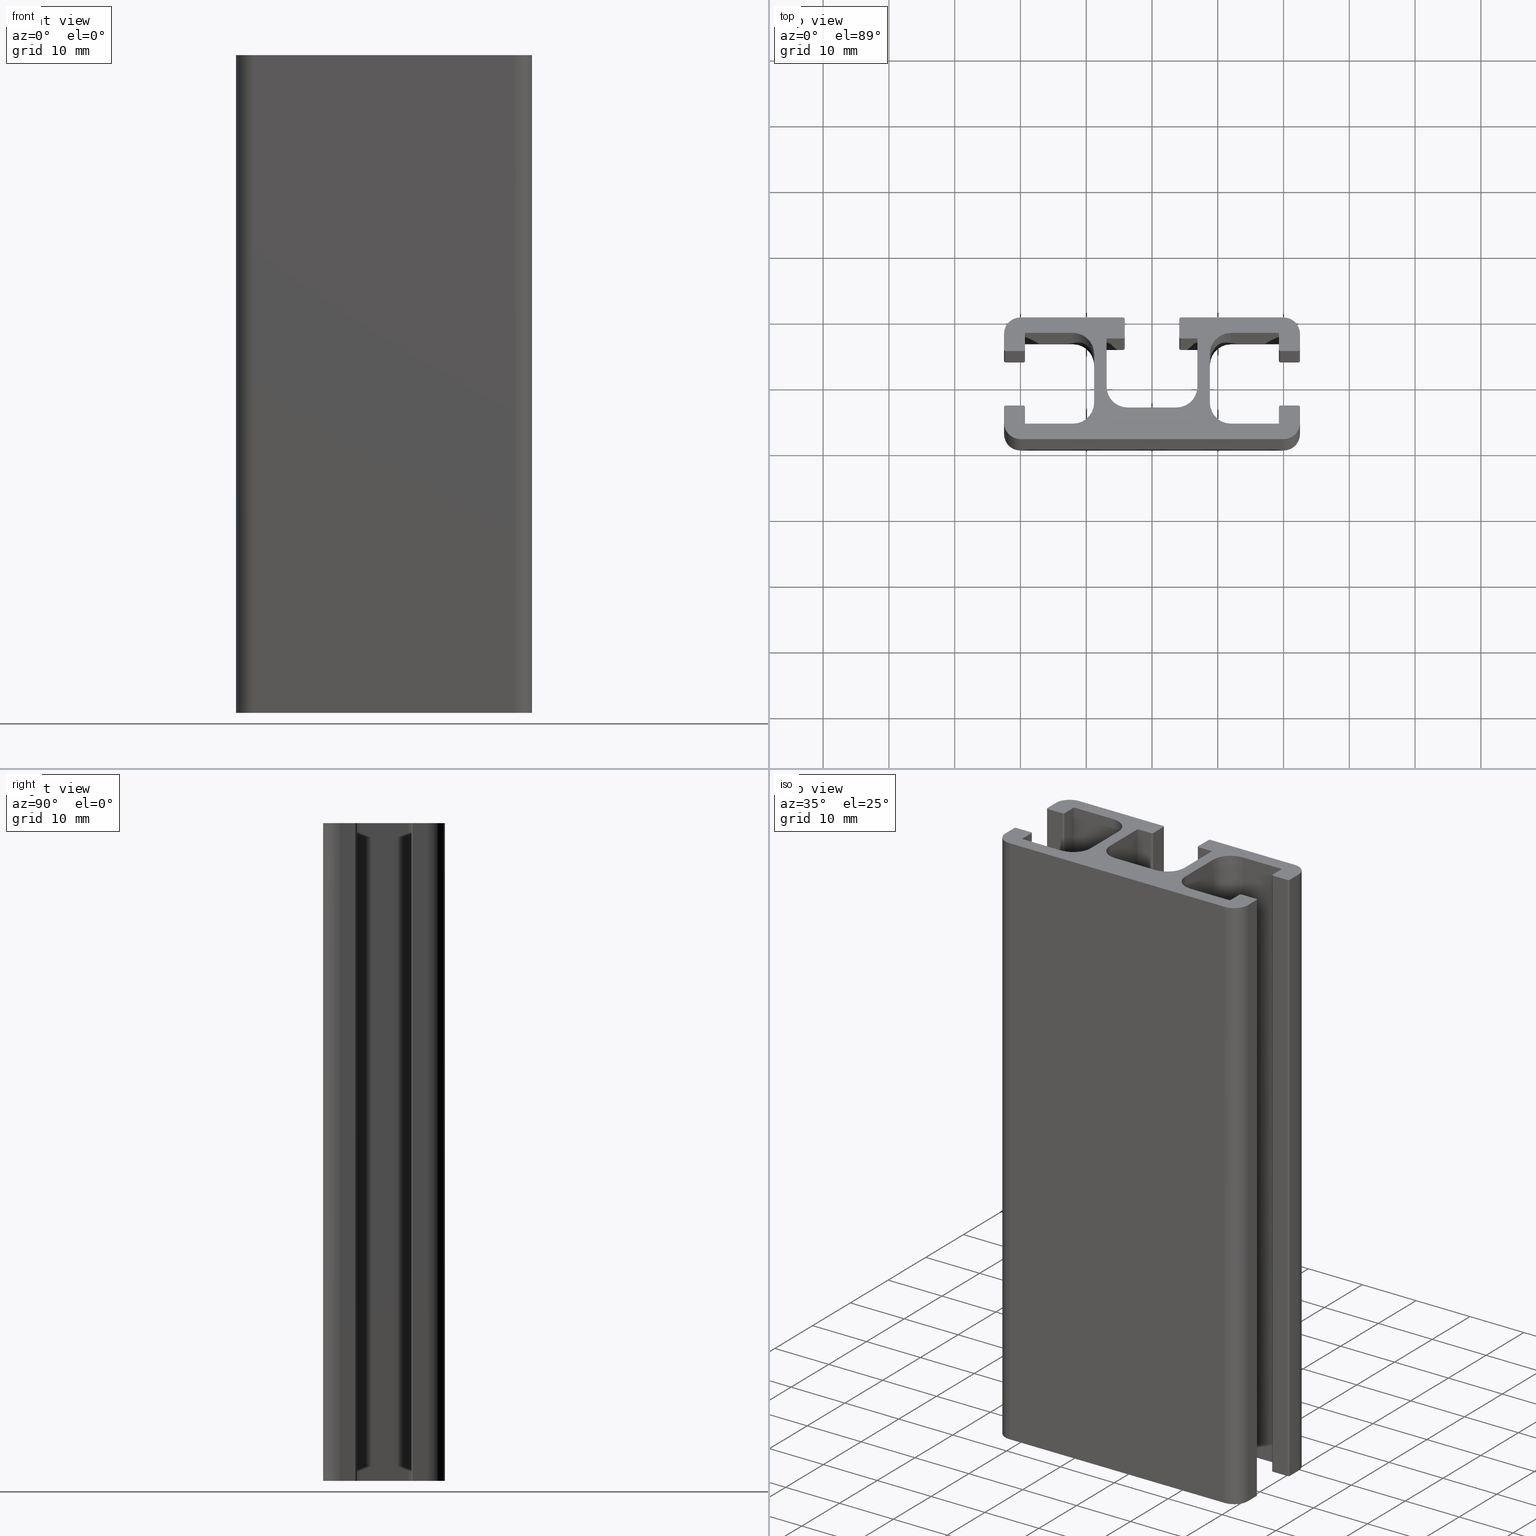
[diagram: canonical four-view strip — front | top / right | iso, engineering-drawing reading convention]
A machine part, canonical four-view strip (front | top / right | iso — engineering-drawing reading convention). The complete STEP part file that produces these views, byte-faithful:
ISO-10303-21;
HEADER;
/* Generated by software containing ST-Developer
 * from STEP Tools, Inc. (www.steptools.com) 
 */

FILE_DESCRIPTION(
/* description */ (''),
/* implementation_level */ '2;1');

FILE_NAME(
/* name */ 
'Q:\\Catalogo\\1_Profili Dierre\\Per Download Web\\Serie 45\\BPRDD0000
132.stp',
/* time_stamp */ '2017-07-12T17:36:40+02:00',
/* author */ ('fzagni'),
/* organization */ (''),
/* preprocessor_version */ 'ST-DEVELOPER v16.1',
/* originating_system */ 'Autodesk Inventor 2016',
/* authorisation */ '');

FILE_SCHEMA (('AUTOMOTIVE_DESIGN { 1 0 10303 214 3 1 1 }'));
ENDSEC;

DATA;
#10=MECHANICAL_DESIGN_GEOMETRIC_PRESENTATION_REPRESENTATION('',(#13),#1733);
#11=SHAPE_REPRESENTATION_RELATIONSHIP('SRR','None',#1742,#12);
#12=ADVANCED_BREP_SHAPE_REPRESENTATION('',(#14),#1732);
#13=STYLED_ITEM('',(#1751),#14);
#14=MANIFOLD_SOLID_BREP('Solido1',#1029);
#15=PLANE('',#1037);
#16=PLANE('',#1041);
#17=PLANE('',#1042);
#18=PLANE('',#1046);
#19=PLANE('',#1050);
#20=PLANE('',#1051);
#21=PLANE('',#1055);
#22=PLANE('',#1056);
#23=PLANE('',#1060);
#24=PLANE('',#1067);
#25=PLANE('',#1071);
#26=PLANE('',#1072);
#27=PLANE('',#1076);
#28=PLANE('',#1080);
#29=PLANE('',#1081);
#30=PLANE('',#1082);
#31=PLANE('',#1086);
#32=PLANE('',#1090);
#33=PLANE('',#1091);
#34=PLANE('',#1095);
#35=PLANE('',#1102);
#36=PLANE('',#1106);
#37=PLANE('',#1107);
#38=PLANE('',#1108);
#39=PLANE('',#1113);
#40=PLANE('',#1114);
#41=PLANE('',#1117);
#42=PLANE('',#1120);
#43=PLANE('',#1125);
#44=PLANE('',#1126);
#45=FACE_OUTER_BOUND('',#97,.T.);
#46=FACE_OUTER_BOUND('',#98,.T.);
#47=FACE_OUTER_BOUND('',#99,.T.);
#48=FACE_OUTER_BOUND('',#100,.T.);
#49=FACE_OUTER_BOUND('',#101,.T.);
#50=FACE_OUTER_BOUND('',#102,.T.);
#51=FACE_OUTER_BOUND('',#103,.T.);
#52=FACE_OUTER_BOUND('',#104,.T.);
#53=FACE_OUTER_BOUND('',#105,.T.);
#54=FACE_OUTER_BOUND('',#106,.T.);
#55=FACE_OUTER_BOUND('',#107,.T.);
#56=FACE_OUTER_BOUND('',#108,.T.);
#57=FACE_OUTER_BOUND('',#109,.T.);
#58=FACE_OUTER_BOUND('',#110,.T.);
#59=FACE_OUTER_BOUND('',#111,.T.);
#60=FACE_OUTER_BOUND('',#112,.T.);
#61=FACE_OUTER_BOUND('',#113,.T.);
#62=FACE_OUTER_BOUND('',#114,.T.);
#63=FACE_OUTER_BOUND('',#115,.T.);
#64=FACE_OUTER_BOUND('',#116,.T.);
#65=FACE_OUTER_BOUND('',#117,.T.);
#66=FACE_OUTER_BOUND('',#118,.T.);
#67=FACE_OUTER_BOUND('',#119,.T.);
#68=FACE_OUTER_BOUND('',#120,.T.);
#69=FACE_OUTER_BOUND('',#121,.T.);
#70=FACE_OUTER_BOUND('',#122,.T.);
#71=FACE_OUTER_BOUND('',#123,.T.);
#72=FACE_OUTER_BOUND('',#124,.T.);
#73=FACE_OUTER_BOUND('',#125,.T.);
#74=FACE_OUTER_BOUND('',#126,.T.);
#75=FACE_OUTER_BOUND('',#127,.T.);
#76=FACE_OUTER_BOUND('',#128,.T.);
#77=FACE_OUTER_BOUND('',#129,.T.);
#78=FACE_OUTER_BOUND('',#130,.T.);
#79=FACE_OUTER_BOUND('',#131,.T.);
#80=FACE_OUTER_BOUND('',#132,.T.);
#81=FACE_OUTER_BOUND('',#133,.T.);
#82=FACE_OUTER_BOUND('',#134,.T.);
#83=FACE_OUTER_BOUND('',#135,.T.);
#84=FACE_OUTER_BOUND('',#136,.T.);
#85=FACE_OUTER_BOUND('',#137,.T.);
#86=FACE_OUTER_BOUND('',#138,.T.);
#87=FACE_OUTER_BOUND('',#139,.T.);
#88=FACE_OUTER_BOUND('',#140,.T.);
#89=FACE_OUTER_BOUND('',#141,.T.);
#90=FACE_OUTER_BOUND('',#142,.T.);
#91=FACE_OUTER_BOUND('',#143,.T.);
#92=FACE_OUTER_BOUND('',#144,.T.);
#93=FACE_OUTER_BOUND('',#145,.T.);
#94=FACE_OUTER_BOUND('',#146,.T.);
#95=FACE_OUTER_BOUND('',#147,.T.);
#96=FACE_OUTER_BOUND('',#148,.T.);
#97=EDGE_LOOP('',(#655,#656,#657,#658));
#98=EDGE_LOOP('',(#659,#660,#661,#662));
#99=EDGE_LOOP('',(#663,#664,#665,#666));
#100=EDGE_LOOP('',(#667,#668,#669,#670));
#101=EDGE_LOOP('',(#671,#672,#673,#674));
#102=EDGE_LOOP('',(#675,#676,#677,#678));
#103=EDGE_LOOP('',(#679,#680,#681,#682));
#104=EDGE_LOOP('',(#683,#684,#685,#686));
#105=EDGE_LOOP('',(#687,#688,#689,#690));
#106=EDGE_LOOP('',(#691,#692,#693,#694));
#107=EDGE_LOOP('',(#695,#696,#697,#698));
#108=EDGE_LOOP('',(#699,#700,#701,#702));
#109=EDGE_LOOP('',(#703,#704,#705,#706));
#110=EDGE_LOOP('',(#707,#708,#709,#710));
#111=EDGE_LOOP('',(#711,#712,#713,#714));
#112=EDGE_LOOP('',(#715,#716,#717,#718));
#113=EDGE_LOOP('',(#719,#720,#721,#722));
#114=EDGE_LOOP('',(#723,#724,#725,#726));
#115=EDGE_LOOP('',(#727,#728,#729,#730));
#116=EDGE_LOOP('',(#731,#732,#733,#734));
#117=EDGE_LOOP('',(#735,#736,#737,#738));
#118=EDGE_LOOP('',(#739,#740,#741,#742));
#119=EDGE_LOOP('',(#743,#744,#745,#746));
#120=EDGE_LOOP('',(#747,#748,#749,#750));
#121=EDGE_LOOP('',(#751,#752,#753,#754));
#122=EDGE_LOOP('',(#755,#756,#757,#758));
#123=EDGE_LOOP('',(#759,#760,#761,#762));
#124=EDGE_LOOP('',(#763,#764,#765,#766));
#125=EDGE_LOOP('',(#767,#768,#769,#770));
#126=EDGE_LOOP('',(#771,#772,#773,#774));
#127=EDGE_LOOP('',(#775,#776,#777,#778));
#128=EDGE_LOOP('',(#779,#780,#781,#782));
#129=EDGE_LOOP('',(#783,#784,#785,#786));
#130=EDGE_LOOP('',(#787,#788,#789,#790));
#131=EDGE_LOOP('',(#791,#792,#793,#794));
#132=EDGE_LOOP('',(#795,#796,#797,#798));
#133=EDGE_LOOP('',(#799,#800,#801,#802));
#134=EDGE_LOOP('',(#803,#804,#805,#806));
#135=EDGE_LOOP('',(#807,#808,#809,#810));
#136=EDGE_LOOP('',(#811,#812,#813,#814));
#137=EDGE_LOOP('',(#815,#816,#817,#818));
#138=EDGE_LOOP('',(#819,#820,#821,#822,#823,#824,#825,#826,#827,#828,#829,
#830,#831,#832,#833,#834,#835,#836,#837,#838,#839,#840,#841,#842,#843,#844,
#845,#846,#847,#848,#849,#850,#851,#852,#853,#854,#855,#856,#857,#858,#859,
#860,#861,#862,#863,#864,#865,#866,#867,#868));
#139=EDGE_LOOP('',(#869,#870,#871,#872));
#140=EDGE_LOOP('',(#873,#874,#875,#876));
#141=EDGE_LOOP('',(#877,#878,#879,#880));
#142=EDGE_LOOP('',(#881,#882,#883,#884));
#143=EDGE_LOOP('',(#885,#886,#887,#888));
#144=EDGE_LOOP('',(#889,#890,#891,#892));
#145=EDGE_LOOP('',(#893,#894,#895,#896));
#146=EDGE_LOOP('',(#897,#898,#899,#900));
#147=EDGE_LOOP('',(#901,#902,#903,#904));
#148=EDGE_LOOP('',(#905,#906,#907,#908,#909,#910,#911,#912,#913,#914,#915,
#916,#917,#918,#919,#920,#921,#922,#923,#924,#925,#926,#927,#928,#929,#930,
#931,#932,#933,#934,#935,#936,#937,#938,#939,#940,#941,#942,#943,#944,#945,
#946,#947,#948,#949,#950,#951,#952,#953,#954));
#149=LINE('',#1433,#255);
#150=LINE('',#1436,#256);
#151=LINE('',#1442,#257);
#152=LINE('',#1445,#258);
#153=LINE('',#1448,#259);
#154=LINE('',#1450,#260);
#155=LINE('',#1451,#261);
#156=LINE('',#1457,#262);
#157=LINE('',#1460,#263);
#158=LINE('',#1462,#264);
#159=LINE('',#1463,#265);
#160=LINE('',#1466,#266);
#161=LINE('',#1468,#267);
#162=LINE('',#1469,#268);
#163=LINE('',#1475,#269);
#164=LINE('',#1478,#270);
#165=LINE('',#1480,#271);
#166=LINE('',#1481,#272);
#167=LINE('',#1487,#273);
#168=LINE('',#1490,#274);
#169=LINE('',#1492,#275);
#170=LINE('',#1493,#276);
#171=LINE('',#1496,#277);
#172=LINE('',#1498,#278);
#173=LINE('',#1499,#279);
#174=LINE('',#1505,#280);
#175=LINE('',#1507,#281);
#176=LINE('',#1508,#282);
#177=LINE('',#1512,#283);
#178=LINE('',#1514,#284);
#179=LINE('',#1516,#285);
#180=LINE('',#1517,#286);
#181=LINE('',#1523,#287);
#182=LINE('',#1526,#288);
#183=LINE('',#1528,#289);
#184=LINE('',#1529,#290);
#185=LINE('',#1535,#291);
#186=LINE('',#1541,#292);
#187=LINE('',#1544,#293);
#188=LINE('',#1547,#294);
#189=LINE('',#1549,#295);
#190=LINE('',#1550,#296);
#191=LINE('',#1556,#297);
#192=LINE('',#1559,#298);
#193=LINE('',#1561,#299);
#194=LINE('',#1562,#300);
#195=LINE('',#1565,#301);
#196=LINE('',#1567,#302);
#197=LINE('',#1568,#303);
#198=LINE('',#1574,#304);
#199=LINE('',#1577,#305);
#200=LINE('',#1579,#306);
#201=LINE('',#1580,#307);
#202=LINE('',#1586,#308);
#203=LINE('',#1588,#309);
#204=LINE('',#1589,#310);
#205=LINE('',#1593,#311);
#206=LINE('',#1595,#312);
#207=LINE('',#1597,#313);
#208=LINE('',#1598,#314);
#209=LINE('',#1601,#315);
#210=LINE('',#1603,#316);
#211=LINE('',#1604,#317);
#212=LINE('',#1609,#318);
#213=LINE('',#1613,#319);
#214=LINE('',#1615,#320);
#215=LINE('',#1616,#321);
#216=LINE('',#1621,#322);
#217=LINE('',#1625,#323);
#218=LINE('',#1627,#324);
#219=LINE('',#1628,#325);
#220=LINE('',#1631,#326);
#221=LINE('',#1633,#327);
#222=LINE('',#1634,#328);
#223=LINE('',#1639,#329);
#224=LINE('',#1643,#330);
#225=LINE('',#1645,#331);
#226=LINE('',#1646,#332);
#227=LINE('',#1651,#333);
#228=LINE('',#1658,#334);
#229=LINE('',#1661,#335);
#230=LINE('',#1664,#336);
#231=LINE('',#1666,#337);
#232=LINE('',#1667,#338);
#233=LINE('',#1673,#339);
#234=LINE('',#1675,#340);
#235=LINE('',#1676,#341);
#236=LINE('',#1679,#342);
#237=LINE('',#1681,#343);
#238=LINE('',#1682,#344);
#239=LINE('',#1686,#345);
#240=LINE('',#1690,#346);
#241=LINE('',#1693,#347);
#242=LINE('',#1695,#348);
#243=LINE('',#1698,#349);
#244=LINE('',#1701,#350);
#245=LINE('',#1702,#351);
#246=LINE('',#1705,#352);
#247=LINE('',#1706,#353);
#248=LINE('',#1710,#354);
#249=LINE('',#1713,#355);
#250=LINE('',#1714,#356);
#251=LINE('',#1719,#357);
#252=LINE('',#1720,#358);
#253=LINE('',#1725,#359);
#254=LINE('',#1728,#360);
#255=VECTOR('',#1133,100.);
#256=VECTOR('',#1136,100.);
#257=VECTOR('',#1141,100.);
#258=VECTOR('',#1144,100.);
#259=VECTOR('',#1147,2.7);
#260=VECTOR('',#1148,2.7);
#261=VECTOR('',#1149,100.);
#262=VECTOR('',#1156,100.);
#263=VECTOR('',#1159,2.5);
#264=VECTOR('',#1160,2.5);
#265=VECTOR('',#1161,100.);
#266=VECTOR('',#1164,7.3);
#267=VECTOR('',#1165,7.3);
#268=VECTOR('',#1166,100.);
#269=VECTOR('',#1173,100.);
#270=VECTOR('',#1176,7.40000000000001);
#271=VECTOR('',#1177,7.40000000000001);
#272=VECTOR('',#1178,100.);
#273=VECTOR('',#1185,100.);
#274=VECTOR('',#1188,7.3);
#275=VECTOR('',#1189,7.3);
#276=VECTOR('',#1190,100.);
#277=VECTOR('',#1193,2.5);
#278=VECTOR('',#1194,2.5);
#279=VECTOR('',#1195,100.);
#280=VECTOR('',#1202,100.);
#281=VECTOR('',#1205,2.7);
#282=VECTOR('',#1206,2.7);
#283=VECTOR('',#1209,2.5);
#284=VECTOR('',#1210,100.);
#285=VECTOR('',#1211,2.5);
#286=VECTOR('',#1212,100.);
#287=VECTOR('',#1219,100.);
#288=VECTOR('',#1222,2.7);
#289=VECTOR('',#1223,2.7);
#290=VECTOR('',#1224,100.);
#291=VECTOR('',#1231,100.);
#292=VECTOR('',#1236,100.);
#293=VECTOR('',#1239,100.);
#294=VECTOR('',#1242,2.7);
#295=VECTOR('',#1243,2.7);
#296=VECTOR('',#1244,100.);
#297=VECTOR('',#1251,100.);
#298=VECTOR('',#1254,2.5);
#299=VECTOR('',#1255,2.5);
#300=VECTOR('',#1256,100.);
#301=VECTOR('',#1259,7.3);
#302=VECTOR('',#1260,7.3);
#303=VECTOR('',#1261,100.);
#304=VECTOR('',#1268,100.);
#305=VECTOR('',#1271,7.4);
#306=VECTOR('',#1272,7.4);
#307=VECTOR('',#1273,100.);
#308=VECTOR('',#1280,100.);
#309=VECTOR('',#1283,7.3);
#310=VECTOR('',#1284,7.3);
#311=VECTOR('',#1287,2.5);
#312=VECTOR('',#1288,100.);
#313=VECTOR('',#1289,2.5);
#314=VECTOR('',#1290,100.);
#315=VECTOR('',#1293,7.3);
#316=VECTOR('',#1294,100.);
#317=VECTOR('',#1295,7.3);
#318=VECTOR('',#1300,100.);
#319=VECTOR('',#1305,7.4);
#320=VECTOR('',#1306,100.);
#321=VECTOR('',#1307,7.4);
#322=VECTOR('',#1312,100.);
#323=VECTOR('',#1317,7.29999999999999);
#324=VECTOR('',#1318,100.);
#325=VECTOR('',#1319,7.29999999999999);
#326=VECTOR('',#1322,2.5);
#327=VECTOR('',#1323,100.);
#328=VECTOR('',#1324,2.5);
#329=VECTOR('',#1329,100.);
#330=VECTOR('',#1334,2.7);
#331=VECTOR('',#1335,100.);
#332=VECTOR('',#1336,2.7);
#333=VECTOR('',#1341,100.);
#334=VECTOR('',#1348,100.);
#335=VECTOR('',#1351,100.);
#336=VECTOR('',#1354,2.7);
#337=VECTOR('',#1355,100.);
#338=VECTOR('',#1356,2.7);
#339=VECTOR('',#1365,15.5999999999995);
#340=VECTOR('',#1366,100.);
#341=VECTOR('',#1367,15.5999999999995);
#342=VECTOR('',#1370,2.34999999999999);
#343=VECTOR('',#1371,100.);
#344=VECTOR('',#1372,2.34999999999999);
#345=VECTOR('',#1377,2.35000000000052);
#346=VECTOR('',#1380,40.);
#347=VECTOR('',#1383,2.35000000000047);
#348=VECTOR('',#1384,2.35000000000002);
#349=VECTOR('',#1387,15.6000000000005);
#350=VECTOR('',#1390,2.35000000000002);
#351=VECTOR('',#1391,100.);
#352=VECTOR('',#1394,100.);
#353=VECTOR('',#1395,2.35000000000047);
#354=VECTOR('',#1400,100.);
#355=VECTOR('',#1403,100.);
#356=VECTOR('',#1404,2.35000000000052);
#357=VECTOR('',#1411,100.);
#358=VECTOR('',#1412,15.6000000000005);
#359=VECTOR('',#1419,100.);
#360=VECTOR('',#1424,40.);
#361=CIRCLE('',#1032,0.249999999999507);
#362=CIRCLE('',#1033,0.249999999999507);
#363=CIRCLE('',#1035,0.249999999999501);
#364=CIRCLE('',#1036,0.249999999999501);
#365=CIRCLE('',#1039,0.2499999999995);
#366=CIRCLE('',#1040,0.2499999999995);
#367=CIRCLE('',#1044,3.1999999999936);
#368=CIRCLE('',#1045,3.1999999999936);
#369=CIRCLE('',#1048,3.1999999999936);
#370=CIRCLE('',#1049,3.1999999999936);
#371=CIRCLE('',#1053,0.2499999999995);
#372=CIRCLE('',#1054,0.2499999999995);
#373=CIRCLE('',#1058,0.249999999999499);
#374=CIRCLE('',#1059,0.249999999999499);
#375=CIRCLE('',#1062,0.2499999999995);
#376=CIRCLE('',#1063,0.2499999999995);
#377=CIRCLE('',#1065,0.249999999999492);
#378=CIRCLE('',#1066,0.249999999999492);
#379=CIRCLE('',#1069,0.2499999999995);
#380=CIRCLE('',#1070,0.2499999999995);
#381=CIRCLE('',#1074,3.19999999999362);
#382=CIRCLE('',#1075,3.19999999999362);
#383=CIRCLE('',#1078,3.19999999999361);
#384=CIRCLE('',#1079,3.19999999999361);
#385=CIRCLE('',#1084,3.19999999999361);
#386=CIRCLE('',#1085,3.19999999999361);
#387=CIRCLE('',#1088,3.1999999999936);
#388=CIRCLE('',#1089,3.1999999999936);
#389=CIRCLE('',#1093,0.249999999999507);
#390=CIRCLE('',#1094,0.249999999999507);
#391=CIRCLE('',#1097,0.249999999999506);
#392=CIRCLE('',#1098,0.249999999999506);
#393=CIRCLE('',#1100,0.2499999999995);
#394=CIRCLE('',#1101,0.2499999999995);
#395=CIRCLE('',#1104,0.249999999999499);
#396=CIRCLE('',#1105,0.249999999999499);
#397=CIRCLE('',#1109,2.5);
#398=CIRCLE('',#1110,2.5);
#399=CIRCLE('',#1111,2.5);
#400=CIRCLE('',#1112,2.5);
#401=CIRCLE('',#1116,2.5);
#402=CIRCLE('',#1119,2.5);
#403=CIRCLE('',#1122,2.5);
#404=CIRCLE('',#1124,2.5);
#405=VERTEX_POINT('',#1429);
#406=VERTEX_POINT('',#1430);
#407=VERTEX_POINT('',#1432);
#408=VERTEX_POINT('',#1434);
#409=VERTEX_POINT('',#1438);
#410=VERTEX_POINT('',#1439);
#411=VERTEX_POINT('',#1441);
#412=VERTEX_POINT('',#1443);
#413=VERTEX_POINT('',#1447);
#414=VERTEX_POINT('',#1449);
#415=VERTEX_POINT('',#1453);
#416=VERTEX_POINT('',#1455);
#417=VERTEX_POINT('',#1459);
#418=VERTEX_POINT('',#1461);
#419=VERTEX_POINT('',#1465);
#420=VERTEX_POINT('',#1467);
#421=VERTEX_POINT('',#1471);
#422=VERTEX_POINT('',#1473);
#423=VERTEX_POINT('',#1477);
#424=VERTEX_POINT('',#1479);
#425=VERTEX_POINT('',#1483);
#426=VERTEX_POINT('',#1485);
#427=VERTEX_POINT('',#1489);
#428=VERTEX_POINT('',#1491);
#429=VERTEX_POINT('',#1495);
#430=VERTEX_POINT('',#1497);
#431=VERTEX_POINT('',#1501);
#432=VERTEX_POINT('',#1503);
#433=VERTEX_POINT('',#1510);
#434=VERTEX_POINT('',#1511);
#435=VERTEX_POINT('',#1513);
#436=VERTEX_POINT('',#1515);
#437=VERTEX_POINT('',#1519);
#438=VERTEX_POINT('',#1521);
#439=VERTEX_POINT('',#1525);
#440=VERTEX_POINT('',#1527);
#441=VERTEX_POINT('',#1531);
#442=VERTEX_POINT('',#1533);
#443=VERTEX_POINT('',#1537);
#444=VERTEX_POINT('',#1538);
#445=VERTEX_POINT('',#1540);
#446=VERTEX_POINT('',#1542);
#447=VERTEX_POINT('',#1546);
#448=VERTEX_POINT('',#1548);
#449=VERTEX_POINT('',#1552);
#450=VERTEX_POINT('',#1554);
#451=VERTEX_POINT('',#1558);
#452=VERTEX_POINT('',#1560);
#453=VERTEX_POINT('',#1564);
#454=VERTEX_POINT('',#1566);
#455=VERTEX_POINT('',#1570);
#456=VERTEX_POINT('',#1572);
#457=VERTEX_POINT('',#1576);
#458=VERTEX_POINT('',#1578);
#459=VERTEX_POINT('',#1582);
#460=VERTEX_POINT('',#1584);
#461=VERTEX_POINT('',#1591);
#462=VERTEX_POINT('',#1592);
#463=VERTEX_POINT('',#1594);
#464=VERTEX_POINT('',#1596);
#465=VERTEX_POINT('',#1600);
#466=VERTEX_POINT('',#1602);
#467=VERTEX_POINT('',#1606);
#468=VERTEX_POINT('',#1608);
#469=VERTEX_POINT('',#1612);
#470=VERTEX_POINT('',#1614);
#471=VERTEX_POINT('',#1618);
#472=VERTEX_POINT('',#1620);
#473=VERTEX_POINT('',#1624);
#474=VERTEX_POINT('',#1626);
#475=VERTEX_POINT('',#1630);
#476=VERTEX_POINT('',#1632);
#477=VERTEX_POINT('',#1636);
#478=VERTEX_POINT('',#1638);
#479=VERTEX_POINT('',#1642);
#480=VERTEX_POINT('',#1644);
#481=VERTEX_POINT('',#1648);
#482=VERTEX_POINT('',#1650);
#483=VERTEX_POINT('',#1654);
#484=VERTEX_POINT('',#1655);
#485=VERTEX_POINT('',#1657);
#486=VERTEX_POINT('',#1659);
#487=VERTEX_POINT('',#1663);
#488=VERTEX_POINT('',#1665);
#489=VERTEX_POINT('',#1672);
#490=VERTEX_POINT('',#1674);
#491=VERTEX_POINT('',#1678);
#492=VERTEX_POINT('',#1680);
#493=VERTEX_POINT('',#1684);
#494=VERTEX_POINT('',#1687);
#495=VERTEX_POINT('',#1689);
#496=VERTEX_POINT('',#1691);
#497=VERTEX_POINT('',#1694);
#498=VERTEX_POINT('',#1696);
#499=VERTEX_POINT('',#1700);
#500=VERTEX_POINT('',#1704);
#501=VERTEX_POINT('',#1708);
#502=VERTEX_POINT('',#1712);
#503=VERTEX_POINT('',#1718);
#504=VERTEX_POINT('',#1724);
#505=EDGE_CURVE('',#405,#406,#361,.T.);
#506=EDGE_CURVE('',#407,#405,#149,.T.);
#507=EDGE_CURVE('',#408,#407,#362,.T.);
#508=EDGE_CURVE('',#406,#408,#150,.T.);
#509=EDGE_CURVE('',#409,#410,#363,.T.);
#510=EDGE_CURVE('',#409,#411,#151,.T.);
#511=EDGE_CURVE('',#412,#411,#364,.T.);
#512=EDGE_CURVE('',#412,#410,#152,.T.);
#513=EDGE_CURVE('',#410,#413,#153,.T.);
#514=EDGE_CURVE('',#414,#412,#154,.T.);
#515=EDGE_CURVE('',#414,#413,#155,.T.);
#516=EDGE_CURVE('',#413,#415,#365,.T.);
#517=EDGE_CURVE('',#416,#414,#366,.T.);
#518=EDGE_CURVE('',#416,#415,#156,.T.);
#519=EDGE_CURVE('',#415,#417,#157,.T.);
#520=EDGE_CURVE('',#418,#416,#158,.T.);
#521=EDGE_CURVE('',#418,#417,#159,.T.);
#522=EDGE_CURVE('',#417,#419,#160,.T.);
#523=EDGE_CURVE('',#420,#418,#161,.T.);
#524=EDGE_CURVE('',#420,#419,#162,.T.);
#525=EDGE_CURVE('',#419,#421,#367,.T.);
#526=EDGE_CURVE('',#422,#420,#368,.T.);
#527=EDGE_CURVE('',#422,#421,#163,.T.);
#528=EDGE_CURVE('',#421,#423,#164,.T.);
#529=EDGE_CURVE('',#424,#422,#165,.T.);
#530=EDGE_CURVE('',#424,#423,#166,.T.);
#531=EDGE_CURVE('',#423,#425,#369,.T.);
#532=EDGE_CURVE('',#426,#424,#370,.T.);
#533=EDGE_CURVE('',#426,#425,#167,.T.);
#534=EDGE_CURVE('',#425,#427,#168,.T.);
#535=EDGE_CURVE('',#428,#426,#169,.T.);
#536=EDGE_CURVE('',#428,#427,#170,.T.);
#537=EDGE_CURVE('',#427,#429,#171,.T.);
#538=EDGE_CURVE('',#430,#428,#172,.T.);
#539=EDGE_CURVE('',#430,#429,#173,.T.);
#540=EDGE_CURVE('',#429,#431,#371,.T.);
#541=EDGE_CURVE('',#432,#430,#372,.T.);
#542=EDGE_CURVE('',#432,#431,#174,.T.);
#543=EDGE_CURVE('',#431,#405,#175,.T.);
#544=EDGE_CURVE('',#407,#432,#176,.T.);
#545=EDGE_CURVE('',#433,#434,#177,.T.);
#546=EDGE_CURVE('',#435,#433,#178,.T.);
#547=EDGE_CURVE('',#436,#435,#179,.T.);
#548=EDGE_CURVE('',#436,#434,#180,.T.);
#549=EDGE_CURVE('',#434,#437,#373,.T.);
#550=EDGE_CURVE('',#438,#436,#374,.T.);
#551=EDGE_CURVE('',#438,#437,#181,.T.);
#552=EDGE_CURVE('',#437,#439,#182,.T.);
#553=EDGE_CURVE('',#440,#438,#183,.T.);
#554=EDGE_CURVE('',#440,#439,#184,.T.);
#555=EDGE_CURVE('',#439,#441,#375,.T.);
#556=EDGE_CURVE('',#442,#440,#376,.T.);
#557=EDGE_CURVE('',#441,#442,#185,.T.);
#558=EDGE_CURVE('',#443,#444,#377,.T.);
#559=EDGE_CURVE('',#443,#445,#186,.T.);
#560=EDGE_CURVE('',#446,#445,#378,.T.);
#561=EDGE_CURVE('',#446,#444,#187,.T.);
#562=EDGE_CURVE('',#444,#447,#188,.T.);
#563=EDGE_CURVE('',#448,#446,#189,.T.);
#564=EDGE_CURVE('',#448,#447,#190,.T.);
#565=EDGE_CURVE('',#447,#449,#379,.T.);
#566=EDGE_CURVE('',#450,#448,#380,.T.);
#567=EDGE_CURVE('',#450,#449,#191,.T.);
#568=EDGE_CURVE('',#449,#451,#192,.T.);
#569=EDGE_CURVE('',#452,#450,#193,.T.);
#570=EDGE_CURVE('',#452,#451,#194,.T.);
#571=EDGE_CURVE('',#451,#453,#195,.T.);
#572=EDGE_CURVE('',#454,#452,#196,.T.);
#573=EDGE_CURVE('',#454,#453,#197,.T.);
#574=EDGE_CURVE('',#453,#455,#381,.T.);
#575=EDGE_CURVE('',#456,#454,#382,.T.);
#576=EDGE_CURVE('',#456,#455,#198,.T.);
#577=EDGE_CURVE('',#455,#457,#199,.T.);
#578=EDGE_CURVE('',#458,#456,#200,.T.);
#579=EDGE_CURVE('',#458,#457,#201,.T.);
#580=EDGE_CURVE('',#457,#459,#383,.T.);
#581=EDGE_CURVE('',#460,#458,#384,.T.);
#582=EDGE_CURVE('',#460,#459,#202,.T.);
#583=EDGE_CURVE('',#459,#433,#203,.T.);
#584=EDGE_CURVE('',#435,#460,#204,.T.);
#585=EDGE_CURVE('',#461,#462,#205,.T.);
#586=EDGE_CURVE('',#463,#461,#206,.T.);
#587=EDGE_CURVE('',#464,#463,#207,.T.);
#588=EDGE_CURVE('',#464,#462,#208,.T.);
#589=EDGE_CURVE('',#465,#461,#209,.T.);
#590=EDGE_CURVE('',#466,#465,#210,.T.);
#591=EDGE_CURVE('',#463,#466,#211,.T.);
#592=EDGE_CURVE('',#467,#465,#385,.T.);
#593=EDGE_CURVE('',#468,#467,#212,.T.);
#594=EDGE_CURVE('',#466,#468,#386,.T.);
#595=EDGE_CURVE('',#469,#467,#213,.T.);
#596=EDGE_CURVE('',#470,#469,#214,.T.);
#597=EDGE_CURVE('',#468,#470,#215,.T.);
#598=EDGE_CURVE('',#471,#469,#387,.T.);
#599=EDGE_CURVE('',#472,#471,#216,.T.);
#600=EDGE_CURVE('',#470,#472,#388,.T.);
#601=EDGE_CURVE('',#473,#471,#217,.T.);
#602=EDGE_CURVE('',#474,#473,#218,.T.);
#603=EDGE_CURVE('',#472,#474,#219,.T.);
#604=EDGE_CURVE('',#475,#473,#220,.T.);
#605=EDGE_CURVE('',#476,#475,#221,.T.);
#606=EDGE_CURVE('',#474,#476,#222,.T.);
#607=EDGE_CURVE('',#477,#475,#389,.T.);
#608=EDGE_CURVE('',#478,#477,#223,.T.);
#609=EDGE_CURVE('',#476,#478,#390,.T.);
#610=EDGE_CURVE('',#479,#477,#224,.T.);
#611=EDGE_CURVE('',#480,#479,#225,.T.);
#612=EDGE_CURVE('',#478,#480,#226,.T.);
#613=EDGE_CURVE('',#481,#479,#391,.T.);
#614=EDGE_CURVE('',#481,#482,#227,.T.);
#615=EDGE_CURVE('',#480,#482,#392,.T.);
#616=EDGE_CURVE('',#483,#484,#393,.T.);
#617=EDGE_CURVE('',#485,#483,#228,.T.);
#618=EDGE_CURVE('',#486,#485,#394,.T.);
#619=EDGE_CURVE('',#484,#486,#229,.T.);
#620=EDGE_CURVE('',#487,#483,#230,.T.);
#621=EDGE_CURVE('',#488,#487,#231,.T.);
#622=EDGE_CURVE('',#485,#488,#232,.T.);
#623=EDGE_CURVE('',#462,#487,#395,.T.);
#624=EDGE_CURVE('',#488,#464,#396,.T.);
#625=EDGE_CURVE('',#489,#408,#233,.T.);
#626=EDGE_CURVE('',#489,#490,#234,.T.);
#627=EDGE_CURVE('',#490,#406,#235,.T.);
#628=EDGE_CURVE('',#491,#442,#236,.T.);
#629=EDGE_CURVE('',#491,#492,#237,.T.);
#630=EDGE_CURVE('',#492,#441,#238,.T.);
#631=EDGE_CURVE('',#493,#490,#397,.T.);
#632=EDGE_CURVE('',#443,#493,#239,.T.);
#633=EDGE_CURVE('',#494,#492,#398,.T.);
#634=EDGE_CURVE('',#495,#494,#240,.T.);
#635=EDGE_CURVE('',#496,#495,#399,.T.);
#636=EDGE_CURVE('',#481,#496,#241,.T.);
#637=EDGE_CURVE('',#497,#484,#242,.T.);
#638=EDGE_CURVE('',#498,#497,#400,.T.);
#639=EDGE_CURVE('',#409,#498,#243,.T.);
#640=EDGE_CURVE('',#499,#486,#244,.T.);
#641=EDGE_CURVE('',#499,#497,#245,.T.);
#642=EDGE_CURVE('',#500,#496,#246,.T.);
#643=EDGE_CURVE('',#482,#500,#247,.T.);
#644=EDGE_CURVE('',#501,#491,#401,.T.);
#645=EDGE_CURVE('',#501,#494,#248,.T.);
#646=EDGE_CURVE('',#502,#493,#249,.T.);
#647=EDGE_CURVE('',#445,#502,#250,.T.);
#648=EDGE_CURVE('',#502,#489,#402,.T.);
#649=EDGE_CURVE('',#503,#498,#251,.T.);
#650=EDGE_CURVE('',#411,#503,#252,.T.);
#651=EDGE_CURVE('',#503,#499,#403,.T.);
#652=EDGE_CURVE('',#504,#495,#253,.T.);
#653=EDGE_CURVE('',#500,#504,#404,.T.);
#654=EDGE_CURVE('',#504,#501,#254,.T.);
#655=ORIENTED_EDGE('',*,*,#505,.F.);
#656=ORIENTED_EDGE('',*,*,#506,.F.);
#657=ORIENTED_EDGE('',*,*,#507,.F.);
#658=ORIENTED_EDGE('',*,*,#508,.F.);
#659=ORIENTED_EDGE('',*,*,#509,.F.);
#660=ORIENTED_EDGE('',*,*,#510,.T.);
#661=ORIENTED_EDGE('',*,*,#511,.F.);
#662=ORIENTED_EDGE('',*,*,#512,.T.);
#663=ORIENTED_EDGE('',*,*,#513,.F.);
#664=ORIENTED_EDGE('',*,*,#512,.F.);
#665=ORIENTED_EDGE('',*,*,#514,.F.);
#666=ORIENTED_EDGE('',*,*,#515,.T.);
#667=ORIENTED_EDGE('',*,*,#516,.F.);
#668=ORIENTED_EDGE('',*,*,#515,.F.);
#669=ORIENTED_EDGE('',*,*,#517,.F.);
#670=ORIENTED_EDGE('',*,*,#518,.T.);
#671=ORIENTED_EDGE('',*,*,#519,.F.);
#672=ORIENTED_EDGE('',*,*,#518,.F.);
#673=ORIENTED_EDGE('',*,*,#520,.F.);
#674=ORIENTED_EDGE('',*,*,#521,.T.);
#675=ORIENTED_EDGE('',*,*,#522,.F.);
#676=ORIENTED_EDGE('',*,*,#521,.F.);
#677=ORIENTED_EDGE('',*,*,#523,.F.);
#678=ORIENTED_EDGE('',*,*,#524,.T.);
#679=ORIENTED_EDGE('',*,*,#525,.F.);
#680=ORIENTED_EDGE('',*,*,#524,.F.);
#681=ORIENTED_EDGE('',*,*,#526,.F.);
#682=ORIENTED_EDGE('',*,*,#527,.T.);
#683=ORIENTED_EDGE('',*,*,#528,.F.);
#684=ORIENTED_EDGE('',*,*,#527,.F.);
#685=ORIENTED_EDGE('',*,*,#529,.F.);
#686=ORIENTED_EDGE('',*,*,#530,.T.);
#687=ORIENTED_EDGE('',*,*,#531,.F.);
#688=ORIENTED_EDGE('',*,*,#530,.F.);
#689=ORIENTED_EDGE('',*,*,#532,.F.);
#690=ORIENTED_EDGE('',*,*,#533,.T.);
#691=ORIENTED_EDGE('',*,*,#534,.F.);
#692=ORIENTED_EDGE('',*,*,#533,.F.);
#693=ORIENTED_EDGE('',*,*,#535,.F.);
#694=ORIENTED_EDGE('',*,*,#536,.T.);
#695=ORIENTED_EDGE('',*,*,#537,.F.);
#696=ORIENTED_EDGE('',*,*,#536,.F.);
#697=ORIENTED_EDGE('',*,*,#538,.F.);
#698=ORIENTED_EDGE('',*,*,#539,.T.);
#699=ORIENTED_EDGE('',*,*,#540,.F.);
#700=ORIENTED_EDGE('',*,*,#539,.F.);
#701=ORIENTED_EDGE('',*,*,#541,.F.);
#702=ORIENTED_EDGE('',*,*,#542,.T.);
#703=ORIENTED_EDGE('',*,*,#543,.F.);
#704=ORIENTED_EDGE('',*,*,#542,.F.);
#705=ORIENTED_EDGE('',*,*,#544,.F.);
#706=ORIENTED_EDGE('',*,*,#506,.T.);
#707=ORIENTED_EDGE('',*,*,#545,.F.);
#708=ORIENTED_EDGE('',*,*,#546,.F.);
#709=ORIENTED_EDGE('',*,*,#547,.F.);
#710=ORIENTED_EDGE('',*,*,#548,.T.);
#711=ORIENTED_EDGE('',*,*,#549,.F.);
#712=ORIENTED_EDGE('',*,*,#548,.F.);
#713=ORIENTED_EDGE('',*,*,#550,.F.);
#714=ORIENTED_EDGE('',*,*,#551,.T.);
#715=ORIENTED_EDGE('',*,*,#552,.F.);
#716=ORIENTED_EDGE('',*,*,#551,.F.);
#717=ORIENTED_EDGE('',*,*,#553,.F.);
#718=ORIENTED_EDGE('',*,*,#554,.T.);
#719=ORIENTED_EDGE('',*,*,#555,.F.);
#720=ORIENTED_EDGE('',*,*,#554,.F.);
#721=ORIENTED_EDGE('',*,*,#556,.F.);
#722=ORIENTED_EDGE('',*,*,#557,.F.);
#723=ORIENTED_EDGE('',*,*,#558,.F.);
#724=ORIENTED_EDGE('',*,*,#559,.T.);
#725=ORIENTED_EDGE('',*,*,#560,.F.);
#726=ORIENTED_EDGE('',*,*,#561,.T.);
#727=ORIENTED_EDGE('',*,*,#562,.F.);
#728=ORIENTED_EDGE('',*,*,#561,.F.);
#729=ORIENTED_EDGE('',*,*,#563,.F.);
#730=ORIENTED_EDGE('',*,*,#564,.T.);
#731=ORIENTED_EDGE('',*,*,#565,.F.);
#732=ORIENTED_EDGE('',*,*,#564,.F.);
#733=ORIENTED_EDGE('',*,*,#566,.F.);
#734=ORIENTED_EDGE('',*,*,#567,.T.);
#735=ORIENTED_EDGE('',*,*,#568,.F.);
#736=ORIENTED_EDGE('',*,*,#567,.F.);
#737=ORIENTED_EDGE('',*,*,#569,.F.);
#738=ORIENTED_EDGE('',*,*,#570,.T.);
#739=ORIENTED_EDGE('',*,*,#571,.F.);
#740=ORIENTED_EDGE('',*,*,#570,.F.);
#741=ORIENTED_EDGE('',*,*,#572,.F.);
#742=ORIENTED_EDGE('',*,*,#573,.T.);
#743=ORIENTED_EDGE('',*,*,#574,.F.);
#744=ORIENTED_EDGE('',*,*,#573,.F.);
#745=ORIENTED_EDGE('',*,*,#575,.F.);
#746=ORIENTED_EDGE('',*,*,#576,.T.);
#747=ORIENTED_EDGE('',*,*,#577,.F.);
#748=ORIENTED_EDGE('',*,*,#576,.F.);
#749=ORIENTED_EDGE('',*,*,#578,.F.);
#750=ORIENTED_EDGE('',*,*,#579,.T.);
#751=ORIENTED_EDGE('',*,*,#580,.F.);
#752=ORIENTED_EDGE('',*,*,#579,.F.);
#753=ORIENTED_EDGE('',*,*,#581,.F.);
#754=ORIENTED_EDGE('',*,*,#582,.T.);
#755=ORIENTED_EDGE('',*,*,#583,.F.);
#756=ORIENTED_EDGE('',*,*,#582,.F.);
#757=ORIENTED_EDGE('',*,*,#584,.F.);
#758=ORIENTED_EDGE('',*,*,#546,.T.);
#759=ORIENTED_EDGE('',*,*,#585,.F.);
#760=ORIENTED_EDGE('',*,*,#586,.F.);
#761=ORIENTED_EDGE('',*,*,#587,.F.);
#762=ORIENTED_EDGE('',*,*,#588,.T.);
#763=ORIENTED_EDGE('',*,*,#589,.F.);
#764=ORIENTED_EDGE('',*,*,#590,.F.);
#765=ORIENTED_EDGE('',*,*,#591,.F.);
#766=ORIENTED_EDGE('',*,*,#586,.T.);
#767=ORIENTED_EDGE('',*,*,#592,.F.);
#768=ORIENTED_EDGE('',*,*,#593,.F.);
#769=ORIENTED_EDGE('',*,*,#594,.F.);
#770=ORIENTED_EDGE('',*,*,#590,.T.);
#771=ORIENTED_EDGE('',*,*,#595,.F.);
#772=ORIENTED_EDGE('',*,*,#596,.F.);
#773=ORIENTED_EDGE('',*,*,#597,.F.);
#774=ORIENTED_EDGE('',*,*,#593,.T.);
#775=ORIENTED_EDGE('',*,*,#598,.F.);
#776=ORIENTED_EDGE('',*,*,#599,.F.);
#777=ORIENTED_EDGE('',*,*,#600,.F.);
#778=ORIENTED_EDGE('',*,*,#596,.T.);
#779=ORIENTED_EDGE('',*,*,#601,.F.);
#780=ORIENTED_EDGE('',*,*,#602,.F.);
#781=ORIENTED_EDGE('',*,*,#603,.F.);
#782=ORIENTED_EDGE('',*,*,#599,.T.);
#783=ORIENTED_EDGE('',*,*,#604,.F.);
#784=ORIENTED_EDGE('',*,*,#605,.F.);
#785=ORIENTED_EDGE('',*,*,#606,.F.);
#786=ORIENTED_EDGE('',*,*,#602,.T.);
#787=ORIENTED_EDGE('',*,*,#607,.F.);
#788=ORIENTED_EDGE('',*,*,#608,.F.);
#789=ORIENTED_EDGE('',*,*,#609,.F.);
#790=ORIENTED_EDGE('',*,*,#605,.T.);
#791=ORIENTED_EDGE('',*,*,#610,.F.);
#792=ORIENTED_EDGE('',*,*,#611,.F.);
#793=ORIENTED_EDGE('',*,*,#612,.F.);
#794=ORIENTED_EDGE('',*,*,#608,.T.);
#795=ORIENTED_EDGE('',*,*,#613,.F.);
#796=ORIENTED_EDGE('',*,*,#614,.T.);
#797=ORIENTED_EDGE('',*,*,#615,.F.);
#798=ORIENTED_EDGE('',*,*,#611,.T.);
#799=ORIENTED_EDGE('',*,*,#616,.F.);
#800=ORIENTED_EDGE('',*,*,#617,.F.);
#801=ORIENTED_EDGE('',*,*,#618,.F.);
#802=ORIENTED_EDGE('',*,*,#619,.F.);
#803=ORIENTED_EDGE('',*,*,#620,.F.);
#804=ORIENTED_EDGE('',*,*,#621,.F.);
#805=ORIENTED_EDGE('',*,*,#622,.F.);
#806=ORIENTED_EDGE('',*,*,#617,.T.);
#807=ORIENTED_EDGE('',*,*,#623,.F.);
#808=ORIENTED_EDGE('',*,*,#588,.F.);
#809=ORIENTED_EDGE('',*,*,#624,.F.);
#810=ORIENTED_EDGE('',*,*,#621,.T.);
#811=ORIENTED_EDGE('',*,*,#508,.T.);
#812=ORIENTED_EDGE('',*,*,#625,.F.);
#813=ORIENTED_EDGE('',*,*,#626,.T.);
#814=ORIENTED_EDGE('',*,*,#627,.T.);
#815=ORIENTED_EDGE('',*,*,#557,.T.);
#816=ORIENTED_EDGE('',*,*,#628,.F.);
#817=ORIENTED_EDGE('',*,*,#629,.T.);
#818=ORIENTED_EDGE('',*,*,#630,.T.);
#819=ORIENTED_EDGE('',*,*,#509,.T.);
#820=ORIENTED_EDGE('',*,*,#513,.T.);
#821=ORIENTED_EDGE('',*,*,#516,.T.);
#822=ORIENTED_EDGE('',*,*,#519,.T.);
#823=ORIENTED_EDGE('',*,*,#522,.T.);
#824=ORIENTED_EDGE('',*,*,#525,.T.);
#825=ORIENTED_EDGE('',*,*,#528,.T.);
#826=ORIENTED_EDGE('',*,*,#531,.T.);
#827=ORIENTED_EDGE('',*,*,#534,.T.);
#828=ORIENTED_EDGE('',*,*,#537,.T.);
#829=ORIENTED_EDGE('',*,*,#540,.T.);
#830=ORIENTED_EDGE('',*,*,#543,.T.);
#831=ORIENTED_EDGE('',*,*,#505,.T.);
#832=ORIENTED_EDGE('',*,*,#627,.F.);
#833=ORIENTED_EDGE('',*,*,#631,.F.);
#834=ORIENTED_EDGE('',*,*,#632,.F.);
#835=ORIENTED_EDGE('',*,*,#558,.T.);
#836=ORIENTED_EDGE('',*,*,#562,.T.);
#837=ORIENTED_EDGE('',*,*,#565,.T.);
#838=ORIENTED_EDGE('',*,*,#568,.T.);
#839=ORIENTED_EDGE('',*,*,#571,.T.);
#840=ORIENTED_EDGE('',*,*,#574,.T.);
#841=ORIENTED_EDGE('',*,*,#577,.T.);
#842=ORIENTED_EDGE('',*,*,#580,.T.);
#843=ORIENTED_EDGE('',*,*,#583,.T.);
#844=ORIENTED_EDGE('',*,*,#545,.T.);
#845=ORIENTED_EDGE('',*,*,#549,.T.);
#846=ORIENTED_EDGE('',*,*,#552,.T.);
#847=ORIENTED_EDGE('',*,*,#555,.T.);
#848=ORIENTED_EDGE('',*,*,#630,.F.);
#849=ORIENTED_EDGE('',*,*,#633,.F.);
#850=ORIENTED_EDGE('',*,*,#634,.F.);
#851=ORIENTED_EDGE('',*,*,#635,.F.);
#852=ORIENTED_EDGE('',*,*,#636,.F.);
#853=ORIENTED_EDGE('',*,*,#613,.T.);
#854=ORIENTED_EDGE('',*,*,#610,.T.);
#855=ORIENTED_EDGE('',*,*,#607,.T.);
#856=ORIENTED_EDGE('',*,*,#604,.T.);
#857=ORIENTED_EDGE('',*,*,#601,.T.);
#858=ORIENTED_EDGE('',*,*,#598,.T.);
#859=ORIENTED_EDGE('',*,*,#595,.T.);
#860=ORIENTED_EDGE('',*,*,#592,.T.);
#861=ORIENTED_EDGE('',*,*,#589,.T.);
#862=ORIENTED_EDGE('',*,*,#585,.T.);
#863=ORIENTED_EDGE('',*,*,#623,.T.);
#864=ORIENTED_EDGE('',*,*,#620,.T.);
#865=ORIENTED_EDGE('',*,*,#616,.T.);
#866=ORIENTED_EDGE('',*,*,#637,.F.);
#867=ORIENTED_EDGE('',*,*,#638,.F.);
#868=ORIENTED_EDGE('',*,*,#639,.F.);
#869=ORIENTED_EDGE('',*,*,#619,.T.);
#870=ORIENTED_EDGE('',*,*,#640,.F.);
#871=ORIENTED_EDGE('',*,*,#641,.T.);
#872=ORIENTED_EDGE('',*,*,#637,.T.);
#873=ORIENTED_EDGE('',*,*,#614,.F.);
#874=ORIENTED_EDGE('',*,*,#636,.T.);
#875=ORIENTED_EDGE('',*,*,#642,.F.);
#876=ORIENTED_EDGE('',*,*,#643,.F.);
#877=ORIENTED_EDGE('',*,*,#633,.T.);
#878=ORIENTED_EDGE('',*,*,#629,.F.);
#879=ORIENTED_EDGE('',*,*,#644,.F.);
#880=ORIENTED_EDGE('',*,*,#645,.T.);
#881=ORIENTED_EDGE('',*,*,#559,.F.);
#882=ORIENTED_EDGE('',*,*,#632,.T.);
#883=ORIENTED_EDGE('',*,*,#646,.F.);
#884=ORIENTED_EDGE('',*,*,#647,.F.);
#885=ORIENTED_EDGE('',*,*,#631,.T.);
#886=ORIENTED_EDGE('',*,*,#626,.F.);
#887=ORIENTED_EDGE('',*,*,#648,.F.);
#888=ORIENTED_EDGE('',*,*,#646,.T.);
#889=ORIENTED_EDGE('',*,*,#510,.F.);
#890=ORIENTED_EDGE('',*,*,#639,.T.);
#891=ORIENTED_EDGE('',*,*,#649,.F.);
#892=ORIENTED_EDGE('',*,*,#650,.F.);
#893=ORIENTED_EDGE('',*,*,#638,.T.);
#894=ORIENTED_EDGE('',*,*,#641,.F.);
#895=ORIENTED_EDGE('',*,*,#651,.F.);
#896=ORIENTED_EDGE('',*,*,#649,.T.);
#897=ORIENTED_EDGE('',*,*,#635,.T.);
#898=ORIENTED_EDGE('',*,*,#652,.F.);
#899=ORIENTED_EDGE('',*,*,#653,.F.);
#900=ORIENTED_EDGE('',*,*,#642,.T.);
#901=ORIENTED_EDGE('',*,*,#634,.T.);
#902=ORIENTED_EDGE('',*,*,#645,.F.);
#903=ORIENTED_EDGE('',*,*,#654,.F.);
#904=ORIENTED_EDGE('',*,*,#652,.T.);
#905=ORIENTED_EDGE('',*,*,#511,.T.);
#906=ORIENTED_EDGE('',*,*,#650,.T.);
#907=ORIENTED_EDGE('',*,*,#651,.T.);
#908=ORIENTED_EDGE('',*,*,#640,.T.);
#909=ORIENTED_EDGE('',*,*,#618,.T.);
#910=ORIENTED_EDGE('',*,*,#622,.T.);
#911=ORIENTED_EDGE('',*,*,#624,.T.);
#912=ORIENTED_EDGE('',*,*,#587,.T.);
#913=ORIENTED_EDGE('',*,*,#591,.T.);
#914=ORIENTED_EDGE('',*,*,#594,.T.);
#915=ORIENTED_EDGE('',*,*,#597,.T.);
#916=ORIENTED_EDGE('',*,*,#600,.T.);
#917=ORIENTED_EDGE('',*,*,#603,.T.);
#918=ORIENTED_EDGE('',*,*,#606,.T.);
#919=ORIENTED_EDGE('',*,*,#609,.T.);
#920=ORIENTED_EDGE('',*,*,#612,.T.);
#921=ORIENTED_EDGE('',*,*,#615,.T.);
#922=ORIENTED_EDGE('',*,*,#643,.T.);
#923=ORIENTED_EDGE('',*,*,#653,.T.);
#924=ORIENTED_EDGE('',*,*,#654,.T.);
#925=ORIENTED_EDGE('',*,*,#644,.T.);
#926=ORIENTED_EDGE('',*,*,#628,.T.);
#927=ORIENTED_EDGE('',*,*,#556,.T.);
#928=ORIENTED_EDGE('',*,*,#553,.T.);
#929=ORIENTED_EDGE('',*,*,#550,.T.);
#930=ORIENTED_EDGE('',*,*,#547,.T.);
#931=ORIENTED_EDGE('',*,*,#584,.T.);
#932=ORIENTED_EDGE('',*,*,#581,.T.);
#933=ORIENTED_EDGE('',*,*,#578,.T.);
#934=ORIENTED_EDGE('',*,*,#575,.T.);
#935=ORIENTED_EDGE('',*,*,#572,.T.);
#936=ORIENTED_EDGE('',*,*,#569,.T.);
#937=ORIENTED_EDGE('',*,*,#566,.T.);
#938=ORIENTED_EDGE('',*,*,#563,.T.);
#939=ORIENTED_EDGE('',*,*,#560,.T.);
#940=ORIENTED_EDGE('',*,*,#647,.T.);
#941=ORIENTED_EDGE('',*,*,#648,.T.);
#942=ORIENTED_EDGE('',*,*,#625,.T.);
#943=ORIENTED_EDGE('',*,*,#507,.T.);
#944=ORIENTED_EDGE('',*,*,#544,.T.);
#945=ORIENTED_EDGE('',*,*,#541,.T.);
#946=ORIENTED_EDGE('',*,*,#538,.T.);
#947=ORIENTED_EDGE('',*,*,#535,.T.);
#948=ORIENTED_EDGE('',*,*,#532,.T.);
#949=ORIENTED_EDGE('',*,*,#529,.T.);
#950=ORIENTED_EDGE('',*,*,#526,.T.);
#951=ORIENTED_EDGE('',*,*,#523,.T.);
#952=ORIENTED_EDGE('',*,*,#520,.T.);
#953=ORIENTED_EDGE('',*,*,#517,.T.);
#954=ORIENTED_EDGE('',*,*,#514,.T.);
#955=CYLINDRICAL_SURFACE('',#1031,0.249999999999507);
#956=CYLINDRICAL_SURFACE('',#1034,0.249999999999501);
#957=CYLINDRICAL_SURFACE('',#1038,0.2499999999995);
#958=CYLINDRICAL_SURFACE('',#1043,3.1999999999936);
#959=CYLINDRICAL_SURFACE('',#1047,3.1999999999936);
#960=CYLINDRICAL_SURFACE('',#1052,0.2499999999995);
#961=CYLINDRICAL_SURFACE('',#1057,0.249999999999499);
#962=CYLINDRICAL_SURFACE('',#1061,0.2499999999995);
#963=CYLINDRICAL_SURFACE('',#1064,0.249999999999492);
#964=CYLINDRICAL_SURFACE('',#1068,0.2499999999995);
#965=CYLINDRICAL_SURFACE('',#1073,3.19999999999362);
#966=CYLINDRICAL_SURFACE('',#1077,3.19999999999361);
#967=CYLINDRICAL_SURFACE('',#1083,3.19999999999361);
#968=CYLINDRICAL_SURFACE('',#1087,3.1999999999936);
#969=CYLINDRICAL_SURFACE('',#1092,0.249999999999507);
#970=CYLINDRICAL_SURFACE('',#1096,0.249999999999506);
#971=CYLINDRICAL_SURFACE('',#1099,0.2499999999995);
#972=CYLINDRICAL_SURFACE('',#1103,0.249999999999499);
#973=CYLINDRICAL_SURFACE('',#1115,2.5);
#974=CYLINDRICAL_SURFACE('',#1118,2.5);
#975=CYLINDRICAL_SURFACE('',#1121,2.5);
#976=CYLINDRICAL_SURFACE('',#1123,2.5);
#977=ADVANCED_FACE('',(#45),#955,.T.);
#978=ADVANCED_FACE('',(#46),#956,.T.);
#979=ADVANCED_FACE('',(#47),#15,.F.);
#980=ADVANCED_FACE('',(#48),#957,.T.);
#981=ADVANCED_FACE('',(#49),#16,.F.);
#982=ADVANCED_FACE('',(#50),#17,.F.);
#983=ADVANCED_FACE('',(#51),#958,.F.);
#984=ADVANCED_FACE('',(#52),#18,.F.);
#985=ADVANCED_FACE('',(#53),#959,.F.);
#986=ADVANCED_FACE('',(#54),#19,.F.);
#987=ADVANCED_FACE('',(#55),#20,.F.);
#988=ADVANCED_FACE('',(#56),#960,.T.);
#989=ADVANCED_FACE('',(#57),#21,.F.);
#990=ADVANCED_FACE('',(#58),#22,.F.);
#991=ADVANCED_FACE('',(#59),#961,.T.);
#992=ADVANCED_FACE('',(#60),#23,.F.);
#993=ADVANCED_FACE('',(#61),#962,.T.);
#994=ADVANCED_FACE('',(#62),#963,.T.);
#995=ADVANCED_FACE('',(#63),#24,.F.);
#996=ADVANCED_FACE('',(#64),#964,.T.);
#997=ADVANCED_FACE('',(#65),#25,.F.);
#998=ADVANCED_FACE('',(#66),#26,.F.);
#999=ADVANCED_FACE('',(#67),#965,.F.);
#1000=ADVANCED_FACE('',(#68),#27,.F.);
#1001=ADVANCED_FACE('',(#69),#966,.F.);
#1002=ADVANCED_FACE('',(#70),#28,.F.);
#1003=ADVANCED_FACE('',(#71),#29,.F.);
#1004=ADVANCED_FACE('',(#72),#30,.F.);
#1005=ADVANCED_FACE('',(#73),#967,.F.);
#1006=ADVANCED_FACE('',(#74),#31,.F.);
#1007=ADVANCED_FACE('',(#75),#968,.F.);
#1008=ADVANCED_FACE('',(#76),#32,.F.);
#1009=ADVANCED_FACE('',(#77),#33,.F.);
#1010=ADVANCED_FACE('',(#78),#969,.T.);
#1011=ADVANCED_FACE('',(#79),#34,.F.);
#1012=ADVANCED_FACE('',(#80),#970,.T.);
#1013=ADVANCED_FACE('',(#81),#971,.T.);
#1014=ADVANCED_FACE('',(#82),#35,.F.);
#1015=ADVANCED_FACE('',(#83),#972,.T.);
#1016=ADVANCED_FACE('',(#84),#36,.T.);
#1017=ADVANCED_FACE('',(#85),#37,.T.);
#1018=ADVANCED_FACE('',(#86),#38,.T.);
#1019=ADVANCED_FACE('',(#87),#39,.T.);
#1020=ADVANCED_FACE('',(#88),#40,.T.);
#1021=ADVANCED_FACE('',(#89),#973,.T.);
#1022=ADVANCED_FACE('',(#90),#41,.T.);
#1023=ADVANCED_FACE('',(#91),#974,.T.);
#1024=ADVANCED_FACE('',(#92),#42,.T.);
#1025=ADVANCED_FACE('',(#93),#975,.T.);
#1026=ADVANCED_FACE('',(#94),#976,.T.);
#1027=ADVANCED_FACE('',(#95),#43,.T.);
#1028=ADVANCED_FACE('',(#96),#44,.F.);
#1029=CLOSED_SHELL('',(#977,#978,#979,#980,#981,#982,#983,#984,#985,#986,
#987,#988,#989,#990,#991,#992,#993,#994,#995,#996,#997,#998,#999,#1000,
#1001,#1002,#1003,#1004,#1005,#1006,#1007,#1008,#1009,#1010,#1011,#1012,
#1013,#1014,#1015,#1016,#1017,#1018,#1019,#1020,#1021,#1022,#1023,#1024,
#1025,#1026,#1027,#1028));
#1030=AXIS2_PLACEMENT_3D('placement',#1427,#1127,#1128);
#1031=AXIS2_PLACEMENT_3D('',#1428,#1129,#1130);
#1032=AXIS2_PLACEMENT_3D('',#1431,#1131,#1132);
#1033=AXIS2_PLACEMENT_3D('',#1435,#1134,#1135);
#1034=AXIS2_PLACEMENT_3D('',#1437,#1137,#1138);
#1035=AXIS2_PLACEMENT_3D('',#1440,#1139,#1140);
#1036=AXIS2_PLACEMENT_3D('',#1444,#1142,#1143);
#1037=AXIS2_PLACEMENT_3D('',#1446,#1145,#1146);
#1038=AXIS2_PLACEMENT_3D('',#1452,#1150,#1151);
#1039=AXIS2_PLACEMENT_3D('',#1454,#1152,#1153);
#1040=AXIS2_PLACEMENT_3D('',#1456,#1154,#1155);
#1041=AXIS2_PLACEMENT_3D('',#1458,#1157,#1158);
#1042=AXIS2_PLACEMENT_3D('',#1464,#1162,#1163);
#1043=AXIS2_PLACEMENT_3D('',#1470,#1167,#1168);
#1044=AXIS2_PLACEMENT_3D('',#1472,#1169,#1170);
#1045=AXIS2_PLACEMENT_3D('',#1474,#1171,#1172);
#1046=AXIS2_PLACEMENT_3D('',#1476,#1174,#1175);
#1047=AXIS2_PLACEMENT_3D('',#1482,#1179,#1180);
#1048=AXIS2_PLACEMENT_3D('',#1484,#1181,#1182);
#1049=AXIS2_PLACEMENT_3D('',#1486,#1183,#1184);
#1050=AXIS2_PLACEMENT_3D('',#1488,#1186,#1187);
#1051=AXIS2_PLACEMENT_3D('',#1494,#1191,#1192);
#1052=AXIS2_PLACEMENT_3D('',#1500,#1196,#1197);
#1053=AXIS2_PLACEMENT_3D('',#1502,#1198,#1199);
#1054=AXIS2_PLACEMENT_3D('',#1504,#1200,#1201);
#1055=AXIS2_PLACEMENT_3D('',#1506,#1203,#1204);
#1056=AXIS2_PLACEMENT_3D('',#1509,#1207,#1208);
#1057=AXIS2_PLACEMENT_3D('',#1518,#1213,#1214);
#1058=AXIS2_PLACEMENT_3D('',#1520,#1215,#1216);
#1059=AXIS2_PLACEMENT_3D('',#1522,#1217,#1218);
#1060=AXIS2_PLACEMENT_3D('',#1524,#1220,#1221);
#1061=AXIS2_PLACEMENT_3D('',#1530,#1225,#1226);
#1062=AXIS2_PLACEMENT_3D('',#1532,#1227,#1228);
#1063=AXIS2_PLACEMENT_3D('',#1534,#1229,#1230);
#1064=AXIS2_PLACEMENT_3D('',#1536,#1232,#1233);
#1065=AXIS2_PLACEMENT_3D('',#1539,#1234,#1235);
#1066=AXIS2_PLACEMENT_3D('',#1543,#1237,#1238);
#1067=AXIS2_PLACEMENT_3D('',#1545,#1240,#1241);
#1068=AXIS2_PLACEMENT_3D('',#1551,#1245,#1246);
#1069=AXIS2_PLACEMENT_3D('',#1553,#1247,#1248);
#1070=AXIS2_PLACEMENT_3D('',#1555,#1249,#1250);
#1071=AXIS2_PLACEMENT_3D('',#1557,#1252,#1253);
#1072=AXIS2_PLACEMENT_3D('',#1563,#1257,#1258);
#1073=AXIS2_PLACEMENT_3D('',#1569,#1262,#1263);
#1074=AXIS2_PLACEMENT_3D('',#1571,#1264,#1265);
#1075=AXIS2_PLACEMENT_3D('',#1573,#1266,#1267);
#1076=AXIS2_PLACEMENT_3D('',#1575,#1269,#1270);
#1077=AXIS2_PLACEMENT_3D('',#1581,#1274,#1275);
#1078=AXIS2_PLACEMENT_3D('',#1583,#1276,#1277);
#1079=AXIS2_PLACEMENT_3D('',#1585,#1278,#1279);
#1080=AXIS2_PLACEMENT_3D('',#1587,#1281,#1282);
#1081=AXIS2_PLACEMENT_3D('',#1590,#1285,#1286);
#1082=AXIS2_PLACEMENT_3D('',#1599,#1291,#1292);
#1083=AXIS2_PLACEMENT_3D('',#1605,#1296,#1297);
#1084=AXIS2_PLACEMENT_3D('',#1607,#1298,#1299);
#1085=AXIS2_PLACEMENT_3D('',#1610,#1301,#1302);
#1086=AXIS2_PLACEMENT_3D('',#1611,#1303,#1304);
#1087=AXIS2_PLACEMENT_3D('',#1617,#1308,#1309);
#1088=AXIS2_PLACEMENT_3D('',#1619,#1310,#1311);
#1089=AXIS2_PLACEMENT_3D('',#1622,#1313,#1314);
#1090=AXIS2_PLACEMENT_3D('',#1623,#1315,#1316);
#1091=AXIS2_PLACEMENT_3D('',#1629,#1320,#1321);
#1092=AXIS2_PLACEMENT_3D('',#1635,#1325,#1326);
#1093=AXIS2_PLACEMENT_3D('',#1637,#1327,#1328);
#1094=AXIS2_PLACEMENT_3D('',#1640,#1330,#1331);
#1095=AXIS2_PLACEMENT_3D('',#1641,#1332,#1333);
#1096=AXIS2_PLACEMENT_3D('',#1647,#1337,#1338);
#1097=AXIS2_PLACEMENT_3D('',#1649,#1339,#1340);
#1098=AXIS2_PLACEMENT_3D('',#1652,#1342,#1343);
#1099=AXIS2_PLACEMENT_3D('',#1653,#1344,#1345);
#1100=AXIS2_PLACEMENT_3D('',#1656,#1346,#1347);
#1101=AXIS2_PLACEMENT_3D('',#1660,#1349,#1350);
#1102=AXIS2_PLACEMENT_3D('',#1662,#1352,#1353);
#1103=AXIS2_PLACEMENT_3D('',#1668,#1357,#1358);
#1104=AXIS2_PLACEMENT_3D('',#1669,#1359,#1360);
#1105=AXIS2_PLACEMENT_3D('',#1670,#1361,#1362);
#1106=AXIS2_PLACEMENT_3D('',#1671,#1363,#1364);
#1107=AXIS2_PLACEMENT_3D('',#1677,#1368,#1369);
#1108=AXIS2_PLACEMENT_3D('',#1683,#1373,#1374);
#1109=AXIS2_PLACEMENT_3D('',#1685,#1375,#1376);
#1110=AXIS2_PLACEMENT_3D('',#1688,#1378,#1379);
#1111=AXIS2_PLACEMENT_3D('',#1692,#1381,#1382);
#1112=AXIS2_PLACEMENT_3D('',#1697,#1385,#1386);
#1113=AXIS2_PLACEMENT_3D('',#1699,#1388,#1389);
#1114=AXIS2_PLACEMENT_3D('',#1703,#1392,#1393);
#1115=AXIS2_PLACEMENT_3D('',#1707,#1396,#1397);
#1116=AXIS2_PLACEMENT_3D('',#1709,#1398,#1399);
#1117=AXIS2_PLACEMENT_3D('',#1711,#1401,#1402);
#1118=AXIS2_PLACEMENT_3D('',#1715,#1405,#1406);
#1119=AXIS2_PLACEMENT_3D('',#1716,#1407,#1408);
#1120=AXIS2_PLACEMENT_3D('',#1717,#1409,#1410);
#1121=AXIS2_PLACEMENT_3D('',#1721,#1413,#1414);
#1122=AXIS2_PLACEMENT_3D('',#1722,#1415,#1416);
#1123=AXIS2_PLACEMENT_3D('',#1723,#1417,#1418);
#1124=AXIS2_PLACEMENT_3D('',#1726,#1420,#1421);
#1125=AXIS2_PLACEMENT_3D('',#1727,#1422,#1423);
#1126=AXIS2_PLACEMENT_3D('',#1729,#1425,#1426);
#1127=DIRECTION('axis',(0.,0.,1.));
#1128=DIRECTION('refdir',(1.,0.,0.));
#1129=DIRECTION('center_axis',(0.,0.,1.));
#1130=DIRECTION('ref_axis',(-1.,1.97619698383667E-12,0.));
#1131=DIRECTION('center_axis',(0.,0.,1.));
#1132=DIRECTION('ref_axis',(-1.,1.97619698383667E-12,0.));
#1133=DIRECTION('',(0.,0.,1.));
#1134=DIRECTION('center_axis',(0.,0.,-1.));
#1135=DIRECTION('ref_axis',(-1.,1.97619698383667E-12,0.));
#1136=DIRECTION('',(0.,0.,-1.));
#1137=DIRECTION('center_axis',(0.,0.,1.));
#1138=DIRECTION('ref_axis',(-3.77475828386919E-14,-1.,0.));
#1139=DIRECTION('center_axis',(0.,0.,1.));
#1140=DIRECTION('ref_axis',(-3.77475828386919E-14,-1.,0.));
#1141=DIRECTION('',(0.,0.,-1.));
#1142=DIRECTION('center_axis',(0.,0.,-1.));
#1143=DIRECTION('ref_axis',(-3.77475828386919E-14,-1.,0.));
#1144=DIRECTION('',(0.,0.,1.));
#1145=DIRECTION('center_axis',(1.,3.70896728967367E-13,0.));
#1146=DIRECTION('ref_axis',(-3.70903308066772E-13,1.,0.));
#1147=DIRECTION('',(3.70896728967367E-13,-1.,0.));
#1148=DIRECTION('',(-3.70896728967367E-13,1.,0.));
#1149=DIRECTION('',(0.,0.,1.));
#1150=DIRECTION('center_axis',(0.,0.,1.));
#1151=DIRECTION('ref_axis',(1.,-1.99840144432928E-12,0.));
#1152=DIRECTION('center_axis',(0.,0.,1.));
#1153=DIRECTION('ref_axis',(1.,-1.99840144432928E-12,0.));
#1154=DIRECTION('center_axis',(0.,0.,-1.));
#1155=DIRECTION('ref_axis',(1.,-1.99840144432928E-12,0.));
#1156=DIRECTION('',(0.,0.,1.));
#1157=DIRECTION('center_axis',(0.,1.,0.));
#1158=DIRECTION('ref_axis',(-1.,0.,0.));
#1159=DIRECTION('',(1.,0.,0.));
#1160=DIRECTION('',(-1.,0.,0.));
#1161=DIRECTION('',(0.,0.,1.));
#1162=DIRECTION('center_axis',(1.,-1.75339195217855E-12,0.));
#1163=DIRECTION('ref_axis',(1.75335301833002E-12,1.,0.));
#1164=DIRECTION('',(-1.75339195217855E-12,-1.,0.));
#1165=DIRECTION('',(1.75339195217855E-12,1.,0.));
#1166=DIRECTION('',(0.,0.,1.));
#1167=DIRECTION('center_axis',(0.,0.,1.));
#1168=DIRECTION('ref_axis',(1.99996269545766E-12,-1.,0.));
#1169=DIRECTION('center_axis',(0.,0.,-1.));
#1170=DIRECTION('ref_axis',(1.99996269545766E-12,-1.,0.));
#1171=DIRECTION('center_axis',(0.,0.,1.));
#1172=DIRECTION('ref_axis',(1.99996269545766E-12,-1.,0.));
#1173=DIRECTION('',(0.,0.,1.));
#1174=DIRECTION('center_axis',(-1.7296974663383E-12,-1.,0.));
#1175=DIRECTION('ref_axis',(1.,-1.72972747236599E-12,0.));
#1176=DIRECTION('',(-1.,1.7296974663383E-12,0.));
#1177=DIRECTION('',(1.,-1.7296974663383E-12,0.));
#1178=DIRECTION('',(0.,0.,1.));
#1179=DIRECTION('center_axis',(0.,0.,1.));
#1180=DIRECTION('ref_axis',(-1.,-1.99827134006858E-12,0.));
#1181=DIRECTION('center_axis',(0.,0.,-1.));
#1182=DIRECTION('ref_axis',(-1.,-1.99827134006858E-12,0.));
#1183=DIRECTION('center_axis',(0.,0.,1.));
#1184=DIRECTION('ref_axis',(-1.,-1.99827134006858E-12,0.));
#1185=DIRECTION('',(0.,0.,1.));
#1186=DIRECTION('center_axis',(-1.,0.,0.));
#1187=DIRECTION('ref_axis',(0.,-1.,0.));
#1188=DIRECTION('',(0.,1.,0.));
#1189=DIRECTION('',(0.,-1.,0.));
#1190=DIRECTION('',(0.,0.,1.));
#1191=DIRECTION('center_axis',(-4.00124378074906E-13,1.,0.));
#1192=DIRECTION('ref_axis',(-1.,-4.00124378074906E-13,0.));
#1193=DIRECTION('',(1.,4.00124378074906E-13,0.));
#1194=DIRECTION('',(-1.,-4.00124378074906E-13,0.));
#1195=DIRECTION('',(0.,0.,1.));
#1196=DIRECTION('center_axis',(0.,0.,1.));
#1197=DIRECTION('ref_axis',(2.00062189037854E-12,1.,0.));
#1198=DIRECTION('center_axis',(0.,0.,1.));
#1199=DIRECTION('ref_axis',(2.00062189037854E-12,1.,0.));
#1200=DIRECTION('center_axis',(0.,0.,-1.));
#1201=DIRECTION('ref_axis',(2.00062189037854E-12,1.,0.));
#1202=DIRECTION('',(0.,0.,1.));
#1203=DIRECTION('center_axis',(-1.,-3.65140016987829E-13,0.));
#1204=DIRECTION('ref_axis',(3.65130148338722E-13,-1.,0.));
#1205=DIRECTION('',(-3.65140016987829E-13,1.,0.));
#1206=DIRECTION('',(3.65140016987829E-13,-1.,0.));
#1207=DIRECTION('center_axis',(-1.,-3.99680288865056E-13,0.));
#1208=DIRECTION('ref_axis',(3.99680288865056E-13,-1.,0.));
#1209=DIRECTION('',(-3.99680288865056E-13,1.,0.));
#1210=DIRECTION('',(0.,0.,1.));
#1211=DIRECTION('',(3.99680288865056E-13,-1.,0.));
#1212=DIRECTION('',(0.,0.,1.));
#1213=DIRECTION('center_axis',(0.,0.,1.));
#1214=DIRECTION('ref_axis',(-1.,1.99618099828003E-12,0.));
#1215=DIRECTION('center_axis',(0.,0.,1.));
#1216=DIRECTION('ref_axis',(-1.,1.99618099828003E-12,0.));
#1217=DIRECTION('center_axis',(0.,0.,-1.));
#1218=DIRECTION('ref_axis',(-1.,1.99618099828003E-12,0.));
#1219=DIRECTION('',(0.,0.,1.));
#1220=DIRECTION('center_axis',(3.69868744685306E-13,-1.,0.));
#1221=DIRECTION('ref_axis',(1.,3.69837493963132E-13,0.));
#1222=DIRECTION('',(-1.,-3.69868744685307E-13,0.));
#1223=DIRECTION('',(1.,3.69868744685307E-13,0.));
#1224=DIRECTION('',(0.,0.,1.));
#1225=DIRECTION('center_axis',(0.,0.,1.));
#1226=DIRECTION('ref_axis',(-2.0072832285263E-12,-1.,0.));
#1227=DIRECTION('center_axis',(0.,0.,1.));
#1228=DIRECTION('ref_axis',(-2.0072832285263E-12,-1.,0.));
#1229=DIRECTION('center_axis',(0.,0.,-1.));
#1230=DIRECTION('ref_axis',(-2.0072832285263E-12,-1.,0.));
#1231=DIRECTION('',(0.,0.,-1.));
#1232=DIRECTION('center_axis',(0.,0.,1.));
#1233=DIRECTION('ref_axis',(1.,-6.66133814773795E-15,0.));
#1234=DIRECTION('center_axis',(0.,0.,1.));
#1235=DIRECTION('ref_axis',(1.,-6.66133814773795E-15,0.));
#1236=DIRECTION('',(0.,0.,-1.));
#1237=DIRECTION('center_axis',(0.,0.,-1.));
#1238=DIRECTION('ref_axis',(1.,-6.66133814773795E-15,0.));
#1239=DIRECTION('',(0.,0.,1.));
#1240=DIRECTION('center_axis',(-3.69663147828894E-13,1.,0.));
#1241=DIRECTION('ref_axis',(-1.,-3.69659858279192E-13,0.));
#1242=DIRECTION('',(1.,3.69663147828894E-13,0.));
#1243=DIRECTION('',(-1.,-3.69663147828894E-13,0.));
#1244=DIRECTION('',(0.,0.,1.));
#1245=DIRECTION('center_axis',(0.,0.,1.));
#1246=DIRECTION('ref_axis',(2.0072832285263E-12,1.,0.));
#1247=DIRECTION('center_axis',(0.,0.,1.));
#1248=DIRECTION('ref_axis',(2.0072832285263E-12,1.,0.));
#1249=DIRECTION('center_axis',(0.,0.,-1.));
#1250=DIRECTION('ref_axis',(2.0072832285263E-12,1.,0.));
#1251=DIRECTION('',(0.,0.,1.));
#1252=DIRECTION('center_axis',(-1.,0.,0.));
#1253=DIRECTION('ref_axis',(0.,-1.,0.));
#1254=DIRECTION('',(0.,1.,0.));
#1255=DIRECTION('',(0.,-1.,0.));
#1256=DIRECTION('',(0.,0.,1.));
#1257=DIRECTION('center_axis',(1.74943773318674E-12,1.,0.));
#1258=DIRECTION('ref_axis',(-1.,1.74944503328334E-12,0.));
#1259=DIRECTION('',(1.,-1.74943773318674E-12,0.));
#1260=DIRECTION('',(-1.,1.74943773318674E-12,0.));
#1261=DIRECTION('',(0.,0.,1.));
#1262=DIRECTION('center_axis',(0.,0.,1.));
#1263=DIRECTION('ref_axis',(1.,1.9952789420725E-12,0.));
#1264=DIRECTION('center_axis',(0.,0.,-1.));
#1265=DIRECTION('ref_axis',(1.,1.9952789420725E-12,0.));
#1266=DIRECTION('center_axis',(0.,0.,1.));
#1267=DIRECTION('ref_axis',(1.,1.9952789420725E-12,0.));
#1268=DIRECTION('',(0.,0.,1.));
#1269=DIRECTION('center_axis',(1.,-1.72759704439982E-12,0.));
#1270=DIRECTION('ref_axis',(1.72768466200068E-12,1.,0.));
#1271=DIRECTION('',(-1.72759704439982E-12,-1.,0.));
#1272=DIRECTION('',(1.72759704439982E-12,1.,0.));
#1273=DIRECTION('',(0.,0.,1.));
#1274=DIRECTION('center_axis',(0.,0.,1.));
#1275=DIRECTION('ref_axis',(1.9963197761581E-12,-1.,0.));
#1276=DIRECTION('center_axis',(0.,0.,-1.));
#1277=DIRECTION('ref_axis',(1.9963197761581E-12,-1.,0.));
#1278=DIRECTION('center_axis',(0.,0.,1.));
#1279=DIRECTION('ref_axis',(1.9963197761581E-12,-1.,0.));
#1280=DIRECTION('',(0.,0.,1.));
#1281=DIRECTION('center_axis',(1.52085345839063E-16,-1.,0.));
#1282=DIRECTION('ref_axis',(1.,1.77635683940025E-16,0.));
#1283=DIRECTION('',(-1.,-1.52085345839063E-16,0.));
#1284=DIRECTION('',(1.,1.52085345839063E-16,0.));
#1285=DIRECTION('center_axis',(1.,3.99680288865056E-13,0.));
#1286=DIRECTION('ref_axis',(-3.99680288865056E-13,1.,0.));
#1287=DIRECTION('',(3.99680288865056E-13,-1.,0.));
#1288=DIRECTION('',(0.,0.,1.));
#1289=DIRECTION('',(-3.99680288865056E-13,1.,0.));
#1290=DIRECTION('',(0.,0.,1.));
#1291=DIRECTION('center_axis',(9.12512075034376E-16,1.,0.));
#1292=DIRECTION('ref_axis',(-1.,8.88178419700125E-16,0.));
#1293=DIRECTION('',(1.,-9.12512075034376E-16,0.));
#1294=DIRECTION('',(0.,0.,1.));
#1295=DIRECTION('',(-1.,9.12512075034376E-16,0.));
#1296=DIRECTION('center_axis',(0.,0.,1.));
#1297=DIRECTION('ref_axis',(-1.99701366554849E-12,1.,0.));
#1298=DIRECTION('center_axis',(0.,0.,-1.));
#1299=DIRECTION('ref_axis',(-1.99701366554849E-12,1.,0.));
#1300=DIRECTION('',(0.,0.,1.));
#1301=DIRECTION('center_axis',(0.,0.,1.));
#1302=DIRECTION('ref_axis',(-1.99701366554849E-12,1.,0.));
#1303=DIRECTION('center_axis',(-1.,1.72759704439982E-12,0.));
#1304=DIRECTION('ref_axis',(-1.72768466200068E-12,-1.,0.));
#1305=DIRECTION('',(1.72759704439982E-12,1.,0.));
#1306=DIRECTION('',(0.,0.,1.));
#1307=DIRECTION('',(-1.72759704439982E-12,-1.,0.));
#1308=DIRECTION('center_axis',(0.,0.,1.));
#1309=DIRECTION('ref_axis',(-1.,-1.99996269545766E-12,0.));
#1310=DIRECTION('center_axis',(0.,0.,-1.));
#1311=DIRECTION('ref_axis',(-1.,-1.99996269545766E-12,0.));
#1312=DIRECTION('',(0.,0.,1.));
#1313=DIRECTION('center_axis',(0.,0.,1.));
#1314=DIRECTION('ref_axis',(-1.,-1.99996269545766E-12,0.));
#1315=DIRECTION('center_axis',(-1.75339195217855E-12,-1.,0.));
#1316=DIRECTION('ref_axis',(1.,-1.75335301833002E-12,0.));
#1317=DIRECTION('',(-1.,1.75339195217855E-12,0.));
#1318=DIRECTION('',(0.,0.,1.));
#1319=DIRECTION('',(1.,-1.75339195217855E-12,0.));
#1320=DIRECTION('center_axis',(1.,0.,0.));
#1321=DIRECTION('ref_axis',(0.,1.,0.));
#1322=DIRECTION('',(0.,-1.,0.));
#1323=DIRECTION('',(0.,0.,1.));
#1324=DIRECTION('',(0.,1.,0.));
#1325=DIRECTION('center_axis',(0.,0.,1.));
#1326=DIRECTION('ref_axis',(-1.98063787593519E-12,-1.,0.));
#1327=DIRECTION('center_axis',(0.,0.,1.));
#1328=DIRECTION('ref_axis',(-1.98063787593519E-12,-1.,0.));
#1329=DIRECTION('',(0.,0.,1.));
#1330=DIRECTION('center_axis',(0.,0.,-1.));
#1331=DIRECTION('ref_axis',(-1.98063787593519E-12,-1.,0.));
#1332=DIRECTION('center_axis',(3.64523226418593E-13,-1.,0.));
#1333=DIRECTION('ref_axis',(1.,3.64508423444931E-13,0.));
#1334=DIRECTION('',(-1.,-3.64523226418593E-13,0.));
#1335=DIRECTION('',(0.,0.,1.));
#1336=DIRECTION('',(1.,3.64523226418593E-13,0.));
#1337=DIRECTION('center_axis',(0.,0.,1.));
#1338=DIRECTION('ref_axis',(-1.,1.99840144432167E-14,0.));
#1339=DIRECTION('center_axis',(0.,0.,1.));
#1340=DIRECTION('ref_axis',(-1.,1.99840144432167E-14,0.));
#1341=DIRECTION('',(0.,0.,-1.));
#1342=DIRECTION('center_axis',(0.,0.,-1.));
#1343=DIRECTION('ref_axis',(-1.,1.99840144432167E-14,0.));
#1344=DIRECTION('center_axis',(0.,0.,1.));
#1345=DIRECTION('ref_axis',(2.0072832285263E-12,1.,0.));
#1346=DIRECTION('center_axis',(0.,0.,1.));
#1347=DIRECTION('ref_axis',(2.0072832285263E-12,1.,0.));
#1348=DIRECTION('',(0.,0.,1.));
#1349=DIRECTION('center_axis',(0.,0.,-1.));
#1350=DIRECTION('ref_axis',(2.0072832285263E-12,1.,0.));
#1351=DIRECTION('',(0.,0.,-1.));
#1352=DIRECTION('center_axis',(-3.69663147828894E-13,1.,0.));
#1353=DIRECTION('ref_axis',(-1.,-3.69659858279192E-13,0.));
#1354=DIRECTION('',(1.,3.69663147828894E-13,0.));
#1355=DIRECTION('',(0.,0.,1.));
#1356=DIRECTION('',(-1.,-3.69663147828894E-13,0.));
#1357=DIRECTION('center_axis',(0.,0.,1.));
#1358=DIRECTION('ref_axis',(1.,-1.99618099828003E-12,0.));
#1359=DIRECTION('center_axis',(0.,0.,1.));
#1360=DIRECTION('ref_axis',(1.,-1.99618099828003E-12,0.));
#1361=DIRECTION('center_axis',(0.,0.,-1.));
#1362=DIRECTION('ref_axis',(1.,-1.99618099828003E-12,0.));
#1363=DIRECTION('center_axis',(0.,1.,0.));
#1364=DIRECTION('ref_axis',(-1.,0.,0.));
#1365=DIRECTION('',(1.,0.,0.));
#1366=DIRECTION('',(0.,0.,1.));
#1367=DIRECTION('',(1.,0.,0.));
#1368=DIRECTION('center_axis',(-1.,0.,0.));
#1369=DIRECTION('ref_axis',(0.,-1.,0.));
#1370=DIRECTION('',(0.,1.,0.));
#1371=DIRECTION('',(0.,0.,1.));
#1372=DIRECTION('',(0.,1.,0.));
#1373=DIRECTION('center_axis',(0.,0.,1.));
#1374=DIRECTION('ref_axis',(1.,0.,0.));
#1375=DIRECTION('center_axis',(0.,0.,-1.));
#1376=DIRECTION('ref_axis',(0.,-1.,0.));
#1377=DIRECTION('',(0.,1.,0.));
#1378=DIRECTION('center_axis',(0.,0.,-1.));
#1379=DIRECTION('ref_axis',(1.,-4.44089209850063E-16,0.));
#1380=DIRECTION('',(-1.,0.,0.));
#1381=DIRECTION('center_axis',(0.,0.,-1.));
#1382=DIRECTION('ref_axis',(0.,1.,0.));
#1383=DIRECTION('',(0.,-1.,0.));
#1384=DIRECTION('',(0.,-1.,0.));
#1385=DIRECTION('center_axis',(0.,0.,-1.));
#1386=DIRECTION('ref_axis',(-1.,4.44089209850063E-16,0.));
#1387=DIRECTION('',(1.,0.,0.));
#1388=DIRECTION('center_axis',(1.,0.,0.));
#1389=DIRECTION('ref_axis',(0.,1.,0.));
#1390=DIRECTION('',(0.,-1.,0.));
#1391=DIRECTION('',(0.,0.,1.));
#1392=DIRECTION('center_axis',(1.,0.,0.));
#1393=DIRECTION('ref_axis',(0.,1.,0.));
#1394=DIRECTION('',(0.,0.,1.));
#1395=DIRECTION('',(0.,-1.,0.));
#1396=DIRECTION('center_axis',(0.,0.,1.));
#1397=DIRECTION('ref_axis',(1.,-4.44089209850063E-16,0.));
#1398=DIRECTION('center_axis',(0.,0.,-1.));
#1399=DIRECTION('ref_axis',(1.,-4.44089209850063E-16,0.));
#1400=DIRECTION('',(0.,0.,1.));
#1401=DIRECTION('center_axis',(-1.,0.,0.));
#1402=DIRECTION('ref_axis',(0.,-1.,0.));
#1403=DIRECTION('',(0.,0.,1.));
#1404=DIRECTION('',(0.,1.,0.));
#1405=DIRECTION('center_axis',(0.,0.,1.));
#1406=DIRECTION('ref_axis',(0.,-1.,0.));
#1407=DIRECTION('center_axis',(0.,0.,-1.));
#1408=DIRECTION('ref_axis',(0.,-1.,0.));
#1409=DIRECTION('center_axis',(0.,1.,0.));
#1410=DIRECTION('ref_axis',(-1.,0.,0.));
#1411=DIRECTION('',(0.,0.,1.));
#1412=DIRECTION('',(1.,0.,0.));
#1413=DIRECTION('center_axis',(0.,0.,1.));
#1414=DIRECTION('ref_axis',(-1.,4.44089209850063E-16,0.));
#1415=DIRECTION('center_axis',(0.,0.,-1.));
#1416=DIRECTION('ref_axis',(-1.,4.44089209850063E-16,0.));
#1417=DIRECTION('center_axis',(0.,0.,1.));
#1418=DIRECTION('ref_axis',(0.,1.,0.));
#1419=DIRECTION('',(0.,0.,1.));
#1420=DIRECTION('center_axis',(0.,0.,-1.));
#1421=DIRECTION('ref_axis',(0.,1.,0.));
#1422=DIRECTION('center_axis',(0.,-1.,0.));
#1423=DIRECTION('ref_axis',(1.,0.,0.));
#1424=DIRECTION('',(-1.,0.,0.));
#1425=DIRECTION('center_axis',(0.,0.,1.));
#1426=DIRECTION('ref_axis',(1.,0.,0.));
#1427=CARTESIAN_POINT('',(0.,0.,0.));
#1428=CARTESIAN_POINT('Origin',(-4.40000000000049,9.00000000000048,0.));
#1429=CARTESIAN_POINT('',(-4.15000000000098,8.99999999999999,100.));
#1430=CARTESIAN_POINT('',(-4.40000000000047,9.24999999998999,100.));
#1431=CARTESIAN_POINT('Origin',(-4.40000000000049,9.00000000000048,100.));
#1432=CARTESIAN_POINT('',(-4.15000000000098,8.99999999999999,0.));
#1433=CARTESIAN_POINT('',(-4.15000000000098,8.99999999999999,0.));
#1434=CARTESIAN_POINT('',(-4.40000000000047,9.24999999998999,0.));
#1435=CARTESIAN_POINT('Origin',(-4.40000000000049,9.00000000000048,0.));
#1436=CARTESIAN_POINT('',(-4.40000000000049,9.25,0.));
#1437=CARTESIAN_POINT('Origin',(4.39999999999951,8.99999999999948,0.));
#1438=CARTESIAN_POINT('',(4.39999999999952,9.24999999998997,100.));
#1439=CARTESIAN_POINT('',(4.15,8.99999999999999,100.));
#1440=CARTESIAN_POINT('Origin',(4.39999999999951,8.99999999999948,100.));
#1441=CARTESIAN_POINT('',(4.39999999999952,9.24999999998997,0.));
#1442=CARTESIAN_POINT('',(4.39999999999951,9.25,0.));
#1443=CARTESIAN_POINT('',(4.15,8.99999999999999,0.));
#1444=CARTESIAN_POINT('Origin',(4.39999999999951,8.99999999999948,0.));
#1445=CARTESIAN_POINT('',(4.15,8.99999999999999,0.));
#1446=CARTESIAN_POINT('Origin',(4.15000000000101,6.29999999999998,0.));
#1447=CARTESIAN_POINT('',(4.15000000000101,6.29999999999998,100.));
#1448=CARTESIAN_POINT('',(4.15000000000217,3.15000000000076,100.));
#1449=CARTESIAN_POINT('',(4.15000000000101,6.29999999999998,0.));
#1450=CARTESIAN_POINT('',(4.15000000000217,3.15000000000076,0.));
#1451=CARTESIAN_POINT('',(4.15000000000101,6.29999999999998,0.));
#1452=CARTESIAN_POINT('Origin',(4.40000000000051,6.29999999999948,0.));
#1453=CARTESIAN_POINT('',(4.40000000000001,6.04999999999998,100.));
#1454=CARTESIAN_POINT('Origin',(4.40000000000051,6.29999999999948,100.));
#1455=CARTESIAN_POINT('',(4.40000000000001,6.04999999999998,0.));
#1456=CARTESIAN_POINT('Origin',(4.40000000000051,6.29999999999948,0.));
#1457=CARTESIAN_POINT('',(4.40000000000001,6.04999999999998,0.));
#1458=CARTESIAN_POINT('Origin',(6.90000000000001,6.04999999999998,0.));
#1459=CARTESIAN_POINT('',(6.90000000000001,6.04999999999998,100.));
#1460=CARTESIAN_POINT('',(3.45,6.04999999999998,100.));
#1461=CARTESIAN_POINT('',(6.90000000000001,6.04999999999998,0.));
#1462=CARTESIAN_POINT('',(3.45,6.04999999999998,0.));
#1463=CARTESIAN_POINT('',(6.90000000000001,6.04999999999998,0.));
#1464=CARTESIAN_POINT('Origin',(6.89999999998721,-1.25000000000001,0.));
#1465=CARTESIAN_POINT('',(6.89999999998721,-1.25000000000001,100.));
#1466=CARTESIAN_POINT('',(6.8999999999883,-0.625000000006056,100.));
#1467=CARTESIAN_POINT('',(6.89999999998721,-1.25000000000001,0.));
#1468=CARTESIAN_POINT('',(6.8999999999883,-0.625000000006056,0.));
#1469=CARTESIAN_POINT('',(6.89999999998721,-1.25000000000001,0.));
#1470=CARTESIAN_POINT('Origin',(3.6999999999936,-1.25000000000641,0.));
#1471=CARTESIAN_POINT('',(3.7,-4.45000000000002,100.));
#1472=CARTESIAN_POINT('Origin',(3.6999999999936,-1.25000000000641,100.));
#1473=CARTESIAN_POINT('',(3.7,-4.45000000000002,0.));
#1474=CARTESIAN_POINT('Origin',(3.6999999999936,-1.25000000000641,0.));
#1475=CARTESIAN_POINT('',(3.7,-4.45000000000002,0.));
#1476=CARTESIAN_POINT('Origin',(-3.7,-4.44999999998722,0.));
#1477=CARTESIAN_POINT('',(-3.7,-4.44999999998722,100.));
#1478=CARTESIAN_POINT('',(-1.85000000000385,-4.44999999999042,100.));
#1479=CARTESIAN_POINT('',(-3.7,-4.44999999998722,0.));
#1480=CARTESIAN_POINT('',(-1.85000000000385,-4.44999999999042,0.));
#1481=CARTESIAN_POINT('',(-3.7,-4.44999999998722,0.));
#1482=CARTESIAN_POINT('Origin',(-3.7000000000064,-1.24999999999362,0.));
#1483=CARTESIAN_POINT('',(-6.9,-1.25000000000001,100.));
#1484=CARTESIAN_POINT('Origin',(-3.7000000000064,-1.24999999999362,100.));
#1485=CARTESIAN_POINT('',(-6.9,-1.25000000000001,0.));
#1486=CARTESIAN_POINT('Origin',(-3.7000000000064,-1.24999999999362,0.));
#1487=CARTESIAN_POINT('',(-6.9,-1.25000000000001,0.));
#1488=CARTESIAN_POINT('Origin',(-6.9,6.04999999999998,0.));
#1489=CARTESIAN_POINT('',(-6.9,6.04999999999998,100.));
#1490=CARTESIAN_POINT('',(-6.9,3.02499999999999,100.));
#1491=CARTESIAN_POINT('',(-6.9,6.04999999999998,0.));
#1492=CARTESIAN_POINT('',(-6.9,3.02499999999999,0.));
#1493=CARTESIAN_POINT('',(-6.9,6.04999999999998,0.));
#1494=CARTESIAN_POINT('Origin',(-4.4,6.05000000000098,0.));
#1495=CARTESIAN_POINT('',(-4.4,6.05000000000098,100.));
#1496=CARTESIAN_POINT('',(-2.20000000000121,6.05000000000186,100.));
#1497=CARTESIAN_POINT('',(-4.4,6.05000000000098,0.));
#1498=CARTESIAN_POINT('',(-2.20000000000121,6.05000000000186,0.));
#1499=CARTESIAN_POINT('',(-4.4,6.05000000000098,0.));
#1500=CARTESIAN_POINT('Origin',(-4.3999999999995,6.30000000000048,0.));
#1501=CARTESIAN_POINT('',(-4.15,6.29999999999998,100.));
#1502=CARTESIAN_POINT('Origin',(-4.3999999999995,6.30000000000048,100.));
#1503=CARTESIAN_POINT('',(-4.15,6.29999999999998,0.));
#1504=CARTESIAN_POINT('Origin',(-4.3999999999995,6.30000000000048,0.));
#1505=CARTESIAN_POINT('',(-4.15,6.29999999999998,0.));
#1506=CARTESIAN_POINT('Origin',(-4.15000000000098,8.99999999999999,0.));
#1507=CARTESIAN_POINT('',(-4.14999999999934,4.49999999999924,100.));
#1508=CARTESIAN_POINT('',(-4.14999999999934,4.49999999999924,0.));
#1509=CARTESIAN_POINT('Origin',(-19.300000000001,-4.40000000000002,0.));
#1510=CARTESIAN_POINT('',(-19.3,-6.90000000000002,100.));
#1511=CARTESIAN_POINT('',(-19.300000000001,-4.40000000000002,100.));
#1512=CARTESIAN_POINT('',(-19.3000000000019,-2.20000000000387,100.));
#1513=CARTESIAN_POINT('',(-19.3,-6.90000000000002,0.));
#1514=CARTESIAN_POINT('',(-19.3,-6.90000000000002,0.));
#1515=CARTESIAN_POINT('',(-19.300000000001,-4.40000000000002,0.));
#1516=CARTESIAN_POINT('',(-19.3000000000019,-2.20000000000387,0.));
#1517=CARTESIAN_POINT('',(-19.300000000001,-4.40000000000002,0.));
#1518=CARTESIAN_POINT('Origin',(-19.5500000000005,-4.39999999999952,0.));
#1519=CARTESIAN_POINT('',(-19.55,-4.15000000000002,100.));
#1520=CARTESIAN_POINT('Origin',(-19.5500000000005,-4.39999999999952,100.));
#1521=CARTESIAN_POINT('',(-19.55,-4.15000000000002,0.));
#1522=CARTESIAN_POINT('Origin',(-19.5500000000005,-4.39999999999952,0.));
#1523=CARTESIAN_POINT('',(-19.55,-4.15000000000002,0.));
#1524=CARTESIAN_POINT('Origin',(-22.25,-4.15000000000102,0.));
#1525=CARTESIAN_POINT('',(-22.25,-4.15000000000102,100.));
#1526=CARTESIAN_POINT('',(-11.1249999999992,-4.1499999999969,100.));
#1527=CARTESIAN_POINT('',(-22.25,-4.15000000000102,0.));
#1528=CARTESIAN_POINT('',(-11.1249999999992,-4.1499999999969,0.));
#1529=CARTESIAN_POINT('',(-22.25,-4.15000000000102,0.));
#1530=CARTESIAN_POINT('Origin',(-22.2500000000005,-4.40000000000052,0.));
#1531=CARTESIAN_POINT('',(-22.5,-4.40000000000001,100.));
#1532=CARTESIAN_POINT('Origin',(-22.2500000000005,-4.40000000000052,100.));
#1533=CARTESIAN_POINT('',(-22.5,-4.40000000000001,0.));
#1534=CARTESIAN_POINT('Origin',(-22.2500000000005,-4.40000000000052,0.));
#1535=CARTESIAN_POINT('',(-22.5,-4.40000000000052,0.));
#1536=CARTESIAN_POINT('Origin',(-22.2499999999995,4.39999999999948,0.));
#1537=CARTESIAN_POINT('',(-22.5,4.39999999999948,100.));
#1538=CARTESIAN_POINT('',(-22.25,4.14999999999999,100.));
#1539=CARTESIAN_POINT('Origin',(-22.2499999999995,4.39999999999948,100.));
#1540=CARTESIAN_POINT('',(-22.5,4.39999999999948,0.));
#1541=CARTESIAN_POINT('',(-22.5,4.39999999999948,0.));
#1542=CARTESIAN_POINT('',(-22.25,4.14999999999999,0.));
#1543=CARTESIAN_POINT('Origin',(-22.2499999999995,4.39999999999948,0.));
#1544=CARTESIAN_POINT('',(-22.25,4.14999999999999,0.));
#1545=CARTESIAN_POINT('Origin',(-19.55,4.15000000000098,0.));
#1546=CARTESIAN_POINT('',(-19.55,4.15000000000098,100.));
#1547=CARTESIAN_POINT('',(-9.77500000000077,4.1500000000046,100.));
#1548=CARTESIAN_POINT('',(-19.55,4.15000000000098,0.));
#1549=CARTESIAN_POINT('',(-9.77500000000077,4.1500000000046,0.));
#1550=CARTESIAN_POINT('',(-19.55,4.15000000000098,0.));
#1551=CARTESIAN_POINT('Origin',(-19.5499999999995,4.40000000000048,0.));
#1552=CARTESIAN_POINT('',(-19.3,4.39999999999998,100.));
#1553=CARTESIAN_POINT('Origin',(-19.5499999999995,4.40000000000048,100.));
#1554=CARTESIAN_POINT('',(-19.3,4.39999999999998,0.));
#1555=CARTESIAN_POINT('Origin',(-19.5499999999995,4.40000000000048,0.));
#1556=CARTESIAN_POINT('',(-19.3,4.39999999999998,0.));
#1557=CARTESIAN_POINT('Origin',(-19.3,6.89999999999999,0.));
#1558=CARTESIAN_POINT('',(-19.3,6.89999999999999,100.));
#1559=CARTESIAN_POINT('',(-19.3,3.44999999999999,100.));
#1560=CARTESIAN_POINT('',(-19.3,6.89999999999999,0.));
#1561=CARTESIAN_POINT('',(-19.3,3.44999999999999,0.));
#1562=CARTESIAN_POINT('',(-19.3,6.89999999999999,0.));
#1563=CARTESIAN_POINT('Origin',(-12.,6.89999999998721,0.));
#1564=CARTESIAN_POINT('',(-12.,6.89999999998721,100.));
#1565=CARTESIAN_POINT('',(-5.99999999999397,6.89999999997672,100.));
#1566=CARTESIAN_POINT('',(-12.,6.89999999998721,0.));
#1567=CARTESIAN_POINT('',(-5.99999999999397,6.89999999997672,0.));
#1568=CARTESIAN_POINT('',(-12.,6.89999999998721,0.));
#1569=CARTESIAN_POINT('Origin',(-11.9999999999936,3.6999999999936,0.));
#1570=CARTESIAN_POINT('',(-8.8,3.69999999999998,100.));
#1571=CARTESIAN_POINT('Origin',(-11.9999999999936,3.6999999999936,100.));
#1572=CARTESIAN_POINT('',(-8.8,3.69999999999998,0.));
#1573=CARTESIAN_POINT('Origin',(-11.9999999999936,3.6999999999936,0.));
#1574=CARTESIAN_POINT('',(-8.8,3.69999999999998,0.));
#1575=CARTESIAN_POINT('Origin',(-8.80000000001278,-3.70000000000002,0.));
#1576=CARTESIAN_POINT('',(-8.80000000001278,-3.70000000000002,100.));
#1577=CARTESIAN_POINT('',(-8.80000000000959,-1.84999999999241,100.));
#1578=CARTESIAN_POINT('',(-8.80000000001278,-3.70000000000002,0.));
#1579=CARTESIAN_POINT('',(-8.80000000000959,-1.84999999999241,0.));
#1580=CARTESIAN_POINT('',(-8.80000000001278,-3.70000000000002,0.));
#1581=CARTESIAN_POINT('Origin',(-12.0000000000064,-3.70000000000641,0.));
#1582=CARTESIAN_POINT('',(-12.,-6.90000000000002,100.));
#1583=CARTESIAN_POINT('Origin',(-12.0000000000064,-3.70000000000641,100.));
#1584=CARTESIAN_POINT('',(-12.,-6.90000000000002,0.));
#1585=CARTESIAN_POINT('Origin',(-12.0000000000064,-3.70000000000641,0.));
#1586=CARTESIAN_POINT('',(-12.,-6.90000000000002,0.));
#1587=CARTESIAN_POINT('Origin',(-19.3,-6.90000000000002,0.));
#1588=CARTESIAN_POINT('',(-9.65,-6.90000000000001,100.));
#1589=CARTESIAN_POINT('',(-9.65,-6.90000000000001,0.));
#1590=CARTESIAN_POINT('Origin',(19.300000000001,4.39999999999998,0.));
#1591=CARTESIAN_POINT('',(19.3,6.89999999999998,100.));
#1592=CARTESIAN_POINT('',(19.300000000001,4.39999999999998,100.));
#1593=CARTESIAN_POINT('',(19.3000000000019,2.20000000000385,100.));
#1594=CARTESIAN_POINT('',(19.3,6.89999999999998,0.));
#1595=CARTESIAN_POINT('',(19.3,6.89999999999998,0.));
#1596=CARTESIAN_POINT('',(19.300000000001,4.39999999999998,0.));
#1597=CARTESIAN_POINT('',(19.3000000000019,2.20000000000385,0.));
#1598=CARTESIAN_POINT('',(19.300000000001,4.39999999999998,0.));
#1599=CARTESIAN_POINT('Origin',(19.3,6.89999999999998,0.));
#1600=CARTESIAN_POINT('',(12.,6.89999999999998,100.));
#1601=CARTESIAN_POINT('',(9.65,6.89999999999999,100.));
#1602=CARTESIAN_POINT('',(12.,6.89999999999998,0.));
#1603=CARTESIAN_POINT('',(12.,6.89999999999998,0.));
#1604=CARTESIAN_POINT('',(9.65,6.89999999999999,0.));
#1605=CARTESIAN_POINT('Origin',(12.0000000000064,3.70000000000637,0.));
#1606=CARTESIAN_POINT('',(8.80000000001278,3.69999999999998,100.));
#1607=CARTESIAN_POINT('Origin',(12.0000000000064,3.70000000000637,100.));
#1608=CARTESIAN_POINT('',(8.80000000001278,3.69999999999998,0.));
#1609=CARTESIAN_POINT('',(8.80000000001278,3.69999999999998,0.));
#1610=CARTESIAN_POINT('Origin',(12.0000000000064,3.70000000000637,0.));
#1611=CARTESIAN_POINT('Origin',(8.80000000001278,3.69999999999998,0.));
#1612=CARTESIAN_POINT('',(8.8,-3.70000000000002,100.));
#1613=CARTESIAN_POINT('',(8.80000000000959,1.84999999999239,100.));
#1614=CARTESIAN_POINT('',(8.8,-3.70000000000002,0.));
#1615=CARTESIAN_POINT('',(8.8,-3.70000000000002,0.));
#1616=CARTESIAN_POINT('',(8.80000000000959,1.84999999999239,0.));
#1617=CARTESIAN_POINT('Origin',(11.9999999999936,-3.69999999999362,0.));
#1618=CARTESIAN_POINT('',(12.,-6.89999999998722,100.));
#1619=CARTESIAN_POINT('Origin',(11.9999999999936,-3.69999999999362,100.));
#1620=CARTESIAN_POINT('',(12.,-6.89999999998722,0.));
#1621=CARTESIAN_POINT('',(12.,-6.89999999998722,0.));
#1622=CARTESIAN_POINT('Origin',(11.9999999999936,-3.69999999999362,0.));
#1623=CARTESIAN_POINT('Origin',(12.,-6.89999999998722,0.));
#1624=CARTESIAN_POINT('',(19.3,-6.90000000000002,100.));
#1625=CARTESIAN_POINT('',(5.99999999999395,-6.8999999999767,100.));
#1626=CARTESIAN_POINT('',(19.3,-6.90000000000002,0.));
#1627=CARTESIAN_POINT('',(19.3,-6.90000000000002,0.));
#1628=CARTESIAN_POINT('',(5.99999999999395,-6.8999999999767,0.));
#1629=CARTESIAN_POINT('Origin',(19.3,-6.90000000000002,0.));
#1630=CARTESIAN_POINT('',(19.3,-4.40000000000002,100.));
#1631=CARTESIAN_POINT('',(19.3,-3.45000000000001,100.));
#1632=CARTESIAN_POINT('',(19.3,-4.40000000000002,0.));
#1633=CARTESIAN_POINT('',(19.3,-4.40000000000002,0.));
#1634=CARTESIAN_POINT('',(19.3,-3.45000000000001,0.));
#1635=CARTESIAN_POINT('Origin',(19.5499999999995,-4.40000000000051,0.));
#1636=CARTESIAN_POINT('',(19.55,-4.15000000000101,100.));
#1637=CARTESIAN_POINT('Origin',(19.5499999999995,-4.40000000000051,100.));
#1638=CARTESIAN_POINT('',(19.55,-4.15000000000101,0.));
#1639=CARTESIAN_POINT('',(19.55,-4.15000000000101,0.));
#1640=CARTESIAN_POINT('Origin',(19.5499999999995,-4.40000000000051,0.));
#1641=CARTESIAN_POINT('Origin',(19.55,-4.15000000000101,0.));
#1642=CARTESIAN_POINT('',(22.25,-4.15000000000002,100.));
#1643=CARTESIAN_POINT('',(9.77500000000076,-4.15000000000457,100.));
#1644=CARTESIAN_POINT('',(22.25,-4.15000000000002,0.));
#1645=CARTESIAN_POINT('',(22.25,-4.15000000000002,0.));
#1646=CARTESIAN_POINT('',(9.77500000000076,-4.15000000000457,0.));
#1647=CARTESIAN_POINT('Origin',(22.2499999999995,-4.39999999999953,0.));
#1648=CARTESIAN_POINT('',(22.5,-4.39999999999953,100.));
#1649=CARTESIAN_POINT('Origin',(22.2499999999995,-4.39999999999953,100.));
#1650=CARTESIAN_POINT('',(22.5,-4.39999999999953,0.));
#1651=CARTESIAN_POINT('',(22.5,-4.39999999999953,0.));
#1652=CARTESIAN_POINT('Origin',(22.2499999999995,-4.39999999999953,0.));
#1653=CARTESIAN_POINT('Origin',(22.2500000000005,4.40000000000048,0.));
#1654=CARTESIAN_POINT('',(22.25,4.15000000000098,100.));
#1655=CARTESIAN_POINT('',(22.5000000000004,4.39999999999998,100.));
#1656=CARTESIAN_POINT('Origin',(22.2500000000005,4.40000000000048,100.));
#1657=CARTESIAN_POINT('',(22.25,4.15000000000098,0.));
#1658=CARTESIAN_POINT('',(22.25,4.15000000000098,0.));
#1659=CARTESIAN_POINT('',(22.5000000000004,4.39999999999998,0.));
#1660=CARTESIAN_POINT('Origin',(22.2500000000005,4.40000000000048,0.));
#1661=CARTESIAN_POINT('',(22.5,4.40000000000048,0.));
#1662=CARTESIAN_POINT('Origin',(22.25,4.15000000000098,0.));
#1663=CARTESIAN_POINT('',(19.55,4.14999999999998,100.));
#1664=CARTESIAN_POINT('',(11.1249999999992,4.14999999999687,100.));
#1665=CARTESIAN_POINT('',(19.55,4.14999999999998,0.));
#1666=CARTESIAN_POINT('',(19.55,4.14999999999998,0.));
#1667=CARTESIAN_POINT('',(11.1249999999992,4.14999999999687,0.));
#1668=CARTESIAN_POINT('Origin',(19.5500000000005,4.39999999999948,0.));
#1669=CARTESIAN_POINT('Origin',(19.5500000000005,4.39999999999948,100.));
#1670=CARTESIAN_POINT('Origin',(19.5500000000005,4.39999999999948,0.));
#1671=CARTESIAN_POINT('Origin',(20.,9.25,0.));
#1672=CARTESIAN_POINT('',(-20.,9.25,0.));
#1673=CARTESIAN_POINT('',(10.,9.25,0.));
#1674=CARTESIAN_POINT('',(-20.,9.25,100.));
#1675=CARTESIAN_POINT('',(-20.,9.25,0.));
#1676=CARTESIAN_POINT('',(10.,9.25,100.));
#1677=CARTESIAN_POINT('Origin',(-22.5,6.75,0.));
#1678=CARTESIAN_POINT('',(-22.5,-6.75,0.));
#1679=CARTESIAN_POINT('',(-22.5,3.375,0.));
#1680=CARTESIAN_POINT('',(-22.5,-6.75,100.));
#1681=CARTESIAN_POINT('',(-22.5,-6.75,0.));
#1682=CARTESIAN_POINT('',(-22.5,3.375,100.));
#1683=CARTESIAN_POINT('Origin',(0.,0.,100.));
#1684=CARTESIAN_POINT('',(-22.5,6.75,100.));
#1685=CARTESIAN_POINT('Origin',(-20.,6.75,100.));
#1686=CARTESIAN_POINT('',(-22.5,3.375,100.));
#1687=CARTESIAN_POINT('',(-20.,-9.25,100.));
#1688=CARTESIAN_POINT('Origin',(-20.,-6.75,100.));
#1689=CARTESIAN_POINT('',(20.,-9.25,100.));
#1690=CARTESIAN_POINT('',(-10.,-9.25,100.));
#1691=CARTESIAN_POINT('',(22.5,-6.75,100.));
#1692=CARTESIAN_POINT('Origin',(20.,-6.75,100.));
#1693=CARTESIAN_POINT('',(22.5,-3.375,100.));
#1694=CARTESIAN_POINT('',(22.5,6.75,100.));
#1695=CARTESIAN_POINT('',(22.5,-3.375,100.));
#1696=CARTESIAN_POINT('',(20.,9.25,100.));
#1697=CARTESIAN_POINT('Origin',(20.,6.75,100.));
#1698=CARTESIAN_POINT('',(10.,9.25,100.));
#1699=CARTESIAN_POINT('Origin',(22.5,-6.75,0.));
#1700=CARTESIAN_POINT('',(22.5,6.75,0.));
#1701=CARTESIAN_POINT('',(22.5,-3.375,0.));
#1702=CARTESIAN_POINT('',(22.5,6.75,0.));
#1703=CARTESIAN_POINT('Origin',(22.5,-6.75,0.));
#1704=CARTESIAN_POINT('',(22.5,-6.75,0.));
#1705=CARTESIAN_POINT('',(22.5,-6.75,0.));
#1706=CARTESIAN_POINT('',(22.5,-3.375,0.));
#1707=CARTESIAN_POINT('Origin',(-20.,-6.75,0.));
#1708=CARTESIAN_POINT('',(-20.,-9.25,0.));
#1709=CARTESIAN_POINT('Origin',(-20.,-6.75,0.));
#1710=CARTESIAN_POINT('',(-20.,-9.25,0.));
#1711=CARTESIAN_POINT('Origin',(-22.5,6.75,0.));
#1712=CARTESIAN_POINT('',(-22.5,6.75,0.));
#1713=CARTESIAN_POINT('',(-22.5,6.75,0.));
#1714=CARTESIAN_POINT('',(-22.5,3.375,0.));
#1715=CARTESIAN_POINT('Origin',(-20.,6.75,0.));
#1716=CARTESIAN_POINT('Origin',(-20.,6.75,0.));
#1717=CARTESIAN_POINT('Origin',(20.,9.25,0.));
#1718=CARTESIAN_POINT('',(20.,9.25,0.));
#1719=CARTESIAN_POINT('',(20.,9.25,0.));
#1720=CARTESIAN_POINT('',(10.,9.25,0.));
#1721=CARTESIAN_POINT('Origin',(20.,6.75,0.));
#1722=CARTESIAN_POINT('Origin',(20.,6.75,0.));
#1723=CARTESIAN_POINT('Origin',(20.,-6.75,0.));
#1724=CARTESIAN_POINT('',(20.,-9.25,0.));
#1725=CARTESIAN_POINT('',(20.,-9.25,0.));
#1726=CARTESIAN_POINT('Origin',(20.,-6.75,0.));
#1727=CARTESIAN_POINT('Origin',(-20.,-9.25,0.));
#1728=CARTESIAN_POINT('',(-10.,-9.25,0.));
#1729=CARTESIAN_POINT('Origin',(0.,0.,0.));
#1730=UNCERTAINTY_MEASURE_WITH_UNIT(LENGTH_MEASURE(0.01),#1734,
'DISTANCE_ACCURACY_VALUE',
'Maximum model space distance between geometric entities at asserted c
onnectivities');
#1731=UNCERTAINTY_MEASURE_WITH_UNIT(LENGTH_MEASURE(1.E-6),#1734,
'DISTANCE_ACCURACY_VALUE',
'Maximum model space distance between geometric entities at asserted c
onnectivities');
#1732=(
GEOMETRIC_REPRESENTATION_CONTEXT(3)
GLOBAL_UNCERTAINTY_ASSIGNED_CONTEXT((#1730))
GLOBAL_UNIT_ASSIGNED_CONTEXT((#1734,#1737,#1735))
REPRESENTATION_CONTEXT('','3D')
);
#1733=(
GEOMETRIC_REPRESENTATION_CONTEXT(3)
GLOBAL_UNCERTAINTY_ASSIGNED_CONTEXT((#1731))
GLOBAL_UNIT_ASSIGNED_CONTEXT((#1734,#1737,#1735))
REPRESENTATION_CONTEXT('','3D')
);
#1734=(
LENGTH_UNIT()
NAMED_UNIT(*)
SI_UNIT(.MILLI.,.METRE.)
);
#1735=(
NAMED_UNIT(*)
SI_UNIT($,.STERADIAN.)
SOLID_ANGLE_UNIT()
);
#1736=DIMENSIONAL_EXPONENTS(0.,0.,0.,0.,0.,0.,0.);
#1737=(
CONVERSION_BASED_UNIT('degree',#1739)
NAMED_UNIT(#1736)
PLANE_ANGLE_UNIT()
);
#1738=(
NAMED_UNIT(*)
PLANE_ANGLE_UNIT()
SI_UNIT($,.RADIAN.)
);
#1739=PLANE_ANGLE_MEASURE_WITH_UNIT(PLANE_ANGLE_MEASURE(0.01745329252),
#1738);
#1740=SHAPE_DEFINITION_REPRESENTATION(#1741,#1742);
#1741=PRODUCT_DEFINITION_SHAPE('',$,#1744);
#1742=SHAPE_REPRESENTATION('',(#1030),#1732);
#1743=PRODUCT_DEFINITION_CONTEXT('part definition',#1748,'design');
#1744=PRODUCT_DEFINITION('BPRDD0000128','BPRDD0000128',#1745,#1743);
#1745=PRODUCT_DEFINITION_FORMATION('',$,#1750);
#1746=PRODUCT_RELATED_PRODUCT_CATEGORY('BPRDD0000128','BPRDD0000128',(#1750));
#1747=APPLICATION_PROTOCOL_DEFINITION('international standard',
'automotive_design',2009,#1748);
#1748=APPLICATION_CONTEXT(
'Core Data for Automotive Mechanical Design Process');
#1749=PRODUCT_CONTEXT('part definition',#1748,'mechanical');
#1750=PRODUCT('BPRDD0000128','BPRDD0000128',$,(#1749));
#1751=PRESENTATION_STYLE_ASSIGNMENT((#1752));
#1752=SURFACE_STYLE_USAGE(.BOTH.,#1753);
#1753=SURFACE_SIDE_STYLE('',(#1754));
#1754=SURFACE_STYLE_FILL_AREA(#1755);
#1755=FILL_AREA_STYLE('',(#1756));
#1756=FILL_AREA_STYLE_COLOUR('',#1757);
#1757=COLOUR_RGB('',0.698039215686274,0.698039215686274,0.698039215686274);
ENDSEC;
END-ISO-10303-21;
